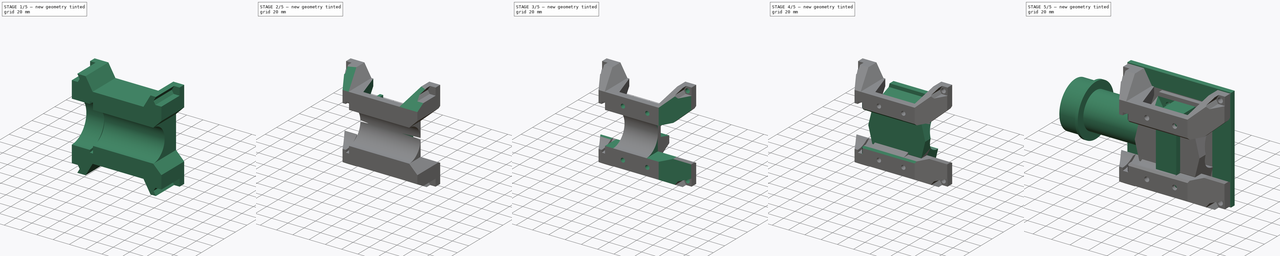
[diagram: build sequence overview — one tinted view per stage of 5, left to right]
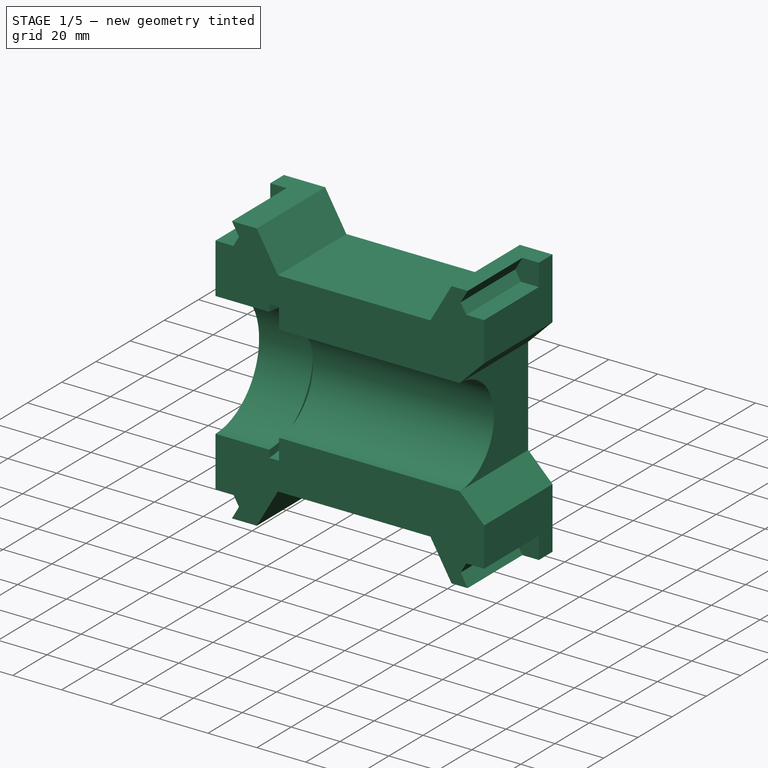
[diagram: stage 1 of 5 — iso view after this stage's code; geometry added in this stage tinted green]
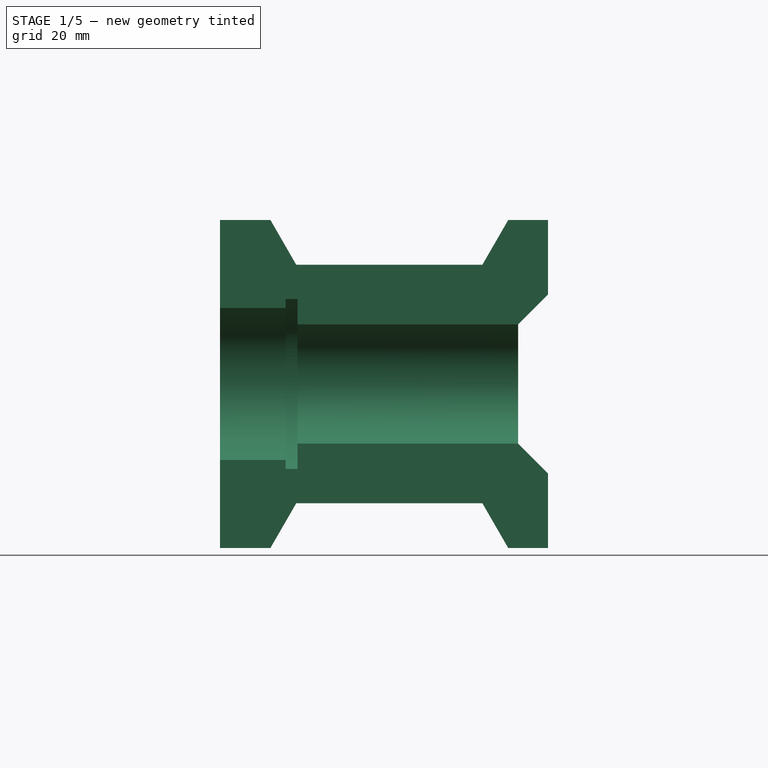
[diagram: stage 1 of 5 — front view after this stage's code; geometry added in this stage tinted green]
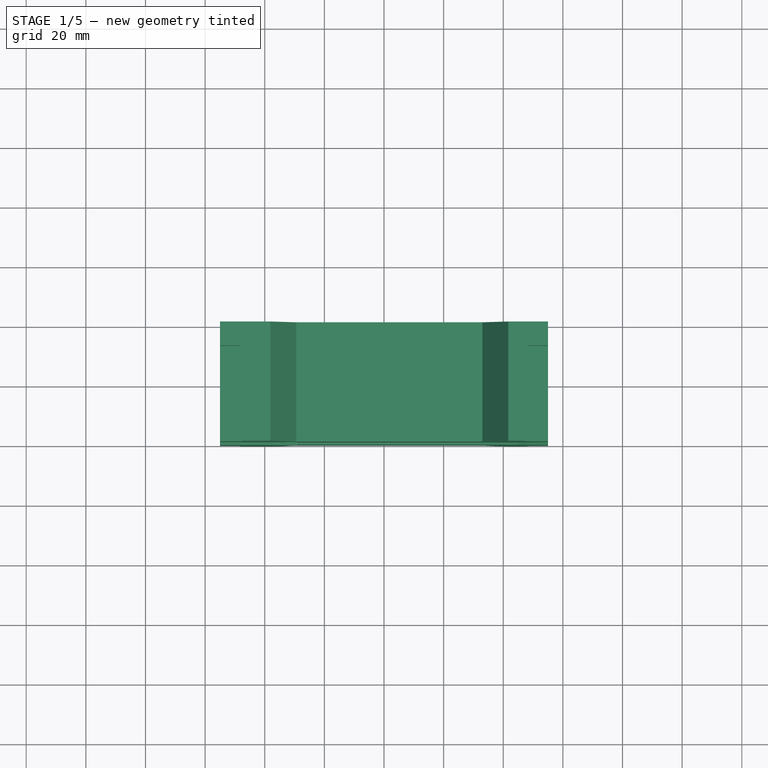
[diagram: stage 1 of 5 — top view after this stage's code; geometry added in this stage tinted green]
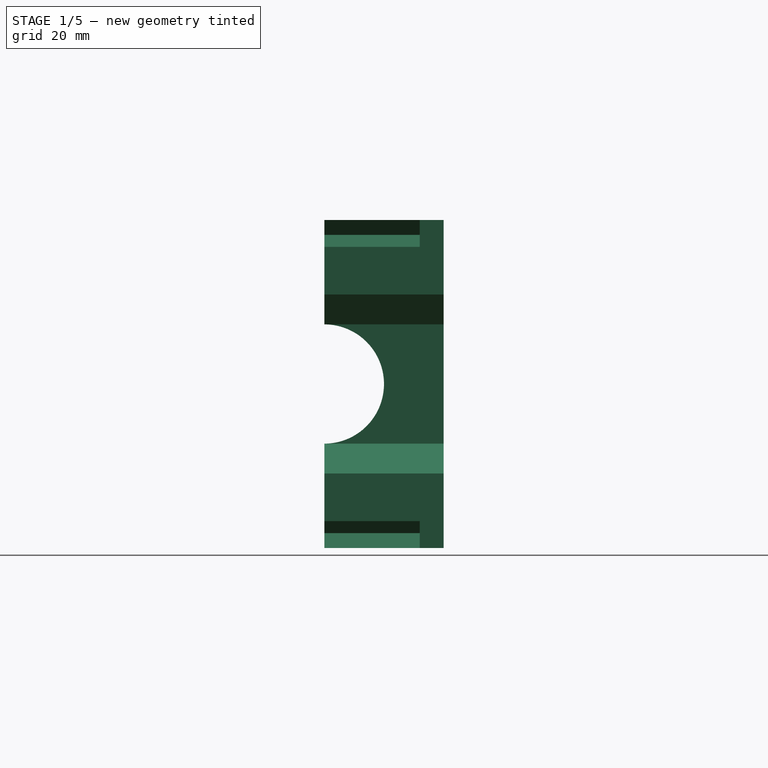
[diagram: stage 1 of 5 — right view after this stage's code; geometry added in this stage tinted green]
FCSTD DOCUMENT  (FreeCAD 0.19R24291 (Git))
Label: Microscope Stand
License: All rights reserved
LicenseURL: http://en.wikipedia.org/wiki/All_rights_reserved
objects: Sketcher::SketchObject×32, PartDesign::Pocket×24, PartDesign::Mirrored×12, PartDesign::Pad×6, PartDesign::Body×4, PartDesign::Chamfer×4, App::Part×3, PartDesign::PolarPattern×2, PartDesign::Plane×2, PartDesign::MultiTransform×2, Part::Feature×2, PartDesign::Revolution×1
note: 126 computed .brp shape members not serialized (recipe doc carries the construction recipe); baked Part::Feature solids carry a one-line shape summary decoded from their .brp

FEATURE [PartDesign::Body] Body001  label="VESA Mount"
  Group = -> [Sketch002,Pad001,Sketch003,Pocket,PolarPattern]
  Origin = -> Origin002
  Tip = -> PolarPattern
FEATURE [Sketcher::SketchObject] Sketch004
  FullyConstrained = true
  MapMode = 5
  Placement = pos=(0,0,0) rot=(1,0,0;1.5708rad)
  Support = -> [XZ_Plane003]
  sketch-geometry (4):
    g0: LineSegment StartX=-55 StartY=55 StartZ=0 EndX=55 EndY=55 EndZ=0
    g1: LineSegment StartX=55 StartY=55 StartZ=0 EndX=55 EndY=-55 EndZ=0
    g2: LineSegment StartX=55 StartY=-55 StartZ=0 EndX=-55 EndY=-55 EndZ=0
    g3: LineSegment StartX=-55 StartY=-55 StartZ=0 EndX=-55 EndY=55 EndZ=0
  constraints (10):
    c: Coincident(g0,g1)
    c: Coincident(g1,g2)
    c: Coincident(g2,g3)
    c: Coincident(g3,g0)
    c: Horizontal(g2)
    c: Vertical(g3)
    c: Symmetric(g0,g0,g-2)
    c: Equal(g0,g1)
    c: Symmetric(g0,g1,g-1)
    c: DistanceX(g0,g0) = 110
FEATURE [PartDesign::Pad] Pad002
  Direction = (1,1,1)
  Length = 40
  Length2 = 100
  Placement = pos=(0,0,0) rot=(1,0,0;1.5708rad)
  Profile = -> Sketch004
  Type = 0
FEATURE [Sketcher::SketchObject] Sketch006
  FullyConstrained = false
  MapMode = 5
  Placement = pos=(0,-40,1.77e-14) rot=(1,0,0;1.5708rad)
  Support = -> [Pad002]
  sketch-geometry (5):
    g0: LineSegment StartX=45 StartY=20 StartZ=0 EndX=62.6598 EndY=37.6598 EndZ=0
    g1: LineSegment StartX=62.6598 StartY=37.6598 StartZ=0 EndX=74.0258 EndY=37.6598 EndZ=0
    g2: LineSegment StartX=74.0258 StartY=37.6598 StartZ=0 EndX=74.0258 EndY=0 EndZ=0
    g3: LineSegment StartX=74.0258 StartY=0 StartZ=0 EndX=45 EndY=0 EndZ=0
    g4: LineSegment StartX=45 StartY=0 StartZ=0 EndX=45 EndY=20 EndZ=0
  constraints (13):
    c: Coincident(g0,g1)
    c: Horizontal(g1)
    c: Coincident(g1,g2)
    c: PointOnObject(g2,g-1)
    c: Vertical(g2)
    c: Coincident(g2,g3)
    c: PointOnObject(g3,g-1)
    c: Coincident(g3,g4)
    c: Vertical(g4)
    c: Coincident(g4,g0)
    c: Angle(g0,g1) = 2.35619
    c: DistanceX(g-1,g3) = 45
    c: DistanceY(g4,g4) = 20
FEATURE [PartDesign::Pocket] Pocket001
  BaseFeature = -> Pad002
  Length = 5
  Length2 = 100
  Placement = pos=(0,0,0) rot=(1,0,0;1.5708rad)
  Profile = -> Sketch006
  Type = 1
FEATURE [PartDesign::Mirrored] Mirrored
  BaseFeature = -> Pocket001
  MirrorPlane = -> Sketch006 [H_Axis]
  Originals = -> [Pocket001]
  Placement = pos=(0,0,0) rot=(1,0,0;1.5708rad)
FEATURE [Sketcher::SketchObject] Sketch007
  FullyConstrained = true
  MapMode = 5
  Placement = pos=(-55,0,0) rot=(0.707107,0,-0.707107;3.14159rad)
  Support = -> [Mirrored]
  sketch-geometry (1):
    g0: Circle CenterX=0 CenterY=40 CenterZ=0 NormalX=0 NormalY=0 NormalZ=1 AngleXU=0 Radius=20
  constraints (3):
    c: PointOnObject(g0,g-2)
    c: Diameter(g0) = 40
    c: DistanceY(g-1,g0) = 40
FEATURE [PartDesign::Pocket] Pocket002
  BaseFeature = -> Mirrored
  Length = 5
  Length2 = 100
  Placement = pos=(0,0,0) rot=(1,0,0;1.5708rad)
  Profile = -> Sketch007
  Type = 1
FEATURE [Sketcher::SketchObject] Sketch008
  FullyConstrained = true
  MapMode = 5
  Placement = pos=(-55,0,0) rot=(0.707107,0,-0.707107;3.14159rad)
  Support = -> [Pocket002]
  sketch-geometry (1):
    g0: Circle CenterX=0 CenterY=40 CenterZ=0 NormalX=0 NormalY=0 NormalZ=1 AngleXU=0 Radius=28.5
  constraints (3):
    c: PointOnObject(g0,g-2)
    c: DistanceY(g-1,g0) = 40
    c: Diameter(g0) = 57
FEATURE [PartDesign::Pocket] Pocket003
  BaseFeature = -> Pocket002
  Length = 26
  Length2 = 100
  Placement = pos=(0,0,0) rot=(1,0,0;1.5708rad)
  Profile = -> Sketch008
  Type = 0
FEATURE [PartDesign::Plane] DatumPlane
  Length = 126.912
  MapMode = 5
  Placement = pos=(-55,0,0) rot=(0.707107,0,-0.707107;3.14159rad)
  ResizeMode = 0
  Support = -> [Pocket003]
  Width = 81.9115
FEATURE [Sketcher::SketchObject] Sketch009
  FullyConstrained = false
  MapMode = 5
  Placement = pos=(-55,0,0) rot=(0.707107,0,-0.707107;3.14159rad)
  Support = -> [DatumPlane]
  sketch-geometry (8):
    g0: ArcOfCircle CenterX=0 CenterY=40 CenterZ=0 NormalX=0 NormalY=0 NormalZ=1 AngleXU=0 Radius=25.5 StartAngle=3.14159 EndAngle=6.28319
    g1: LineSegment StartX=-25.5 StartY=40 StartZ=0 EndX=0 EndY=40 EndZ=0
    g2: LineSegment StartX=0 StartY=40 StartZ=0 EndX=25.5 EndY=40 EndZ=0
    g3: LineSegment StartX=-25.5 StartY=40 StartZ=0 EndX=-34.4039 EndY=40 EndZ=0
    g4: LineSegment StartX=25.5 StartY=40 StartZ=0 EndX=36.1026 EndY=40 EndZ=0
    g5: LineSegment StartX=36.1026 StartY=40 StartZ=0 EndX=36.1026 EndY=0 EndZ=0
    g6: LineSegment StartX=36.1026 StartY=0 StartZ=0 EndX=-34.4039 EndY=0 EndZ=0
    g7: LineSegment StartX=-34.4039 StartY=40 StartZ=0 EndX=-34.4039 EndY=0 EndZ=0
  constraints (21):
    c: PointOnObject(g0,g-2)
    c: Coincident(g1,g0)
    c: Coincident(g1,g0)
    c: Coincident(g2,g0)
    c: Coincident(g2,g0)
    c: Horizontal(g2)
    c: Horizontal(g1)
    c: DistanceY(g-1,g0) = 40
    c: DistanceX(g0,g0) = 51
    c: Coincident(g3,g0)
    c: Horizontal(g3)
    c: Coincident(g4,g0)
    c: Horizontal(g4)
    c: Coincident(g5,g4)
    c: PointOnObject(g5,g-1)
    c: Vertical(g5)
    c: Coincident(g6,g5)
    c: Horizontal(g6)
    c: Coincident(g7,g3)
    c: Coincident(g7,g6)
    c: Vertical(g7)
FEATURE [PartDesign::Pad] Pad003
  BaseFeature = -> Pocket003
  Direction = (1,1,1)
  Length = 22
  Length2 = 100
  Placement = pos=(0,0,0) rot=(1,0,0;1.5708rad)
  Profile = -> Sketch009
  Reversed = true
  Type = 0
FEATURE [Sketcher::SketchObject] Sketch015
  FullyConstrained = false
  MapMode = 5
  Placement = pos=(0,-40,1.77e-14) rot=(1,0,0;1.5708rad)
  Support = -> [Pad003]
  sketch-geometry (4):
    g0: LineSegment StartX=-43.3127 StartY=64.0413 StartZ=0 EndX=-29.4325 EndY=40 EndZ=0
    g1: LineSegment StartX=-29.4325 StartY=40 StartZ=0 EndX=33 EndY=40 EndZ=0
    g2: LineSegment StartX=33 StartY=40 StartZ=0 EndX=46.8802 EndY=64.0413 EndZ=0
    g3: LineSegment StartX=46.8802 StartY=64.0413 StartZ=0 EndX=-43.3127 EndY=64.0413 EndZ=0
  constraints (10):
    c: Coincident(g0,g1)
    c: Horizontal(g1)
    c: Coincident(g1,g2)
    c: Coincident(g2,g3)
    c: Coincident(g3,g0)
    c: Horizontal(g3)
    c: Angle(g2,g1) = 2.0944
    c: Angle(g1,g0) = 2.0944
    c: DistanceY(g-1,g1) = 40
    c: DistanceX(g-2,g1) = 33
FEATURE [PartDesign::Pocket] Pocket008
  BaseFeature = -> Pad003
  Length = 5
  Length2 = 100
  Placement = pos=(0,0,0) rot=(1,0,0;1.5708rad)
  Profile = -> Sketch015
  Type = 1
FEATURE [PartDesign::Mirrored] Mirrored004
  BaseFeature = -> Pocket008
  MirrorPlane = -> Sketch015 [H_Axis]
  Originals = -> [Pocket008]
  Placement = pos=(0,0,0) rot=(1,0,0;1.5708rad)
FEATURE [Sketcher::SketchObject] Sketch016
  FullyConstrained = false
  MapMode = 5
  Placement = pos=(0,-40,1.77e-14) rot=(1,0,0;1.5708rad)
  Support = -> [Mirrored004]
  sketch-geometry (12):
    g0: LineSegment StartX=-45.375 StartY=50 StartZ=0 EndX=-47.6875 EndY=54.0054 EndZ=0
    g1: LineSegment StartX=-47.6875 StartY=54.0054 StartZ=0 EndX=-52.3125 EndY=54.0054 EndZ=0
    g2: LineSegment StartX=-52.3125 StartY=54.0054 StartZ=0 EndX=-54.625 EndY=50 EndZ=0
    g3: LineSegment StartX=-54.625 StartY=50 StartZ=0 EndX=-52.3125 EndY=45.9946 EndZ=0
    g4: LineSegment StartX=-52.3125 StartY=45.9946 StartZ=0 EndX=-47.6875 EndY=45.9946 EndZ=0
    g5: LineSegment StartX=-47.6875 StartY=45.9946 StartZ=0 EndX=-45.375 EndY=50 EndZ=0
    g6: Circle CenterX=-50 CenterY=50 CenterZ=0 NormalX=0 NormalY=0 NormalZ=1 AngleXU=0 Radius=4.625
    g7: LineSegment StartX=-54.625 StartY=50 StartZ=0 EndX=-45.375 EndY=50 EndZ=0
    g8: LineSegment StartX=-52.3125 StartY=45.9946 StartZ=0 EndX=-57.1976 EndY=45.9946 EndZ=0
    g9: LineSegment StartX=-57.1976 StartY=45.9946 StartZ=0 EndX=-57.1976 EndY=57.5063 EndZ=0
    g10: LineSegment StartX=-47.6875 StartY=54.0054 StartZ=0 EndX=-49.7087 EndY=57.5063 EndZ=0
    g11: LineSegment StartX=-57.1976 StartY=57.5063 StartZ=0 EndX=-49.7087 EndY=57.5063 EndZ=0
  constraints (28):
    c: Coincident(g0,g1)
    c: Coincident(g1,g2)
    c: Coincident(g2,g3)
    c: Coincident(g3,g4)
    c: Coincident(g4,g5)
    c: Coincident(g5,g0)
    c: Equal(g0, g1-g5) x5
    c: PointOnObject(g0,g6)
    c: PointOnObject(g1,g6)
    c: PointOnObject(g2,g6)
    c: PointOnObject(g3,g6)
    c: PointOnObject(g4,g6)
    c: PointOnObject(g5,g6)
    c: Coincident(g7,g2)
    c: Coincident(g7,g0)
    c: Horizontal(g7)
    c: DistanceX(g6,g-1) = 50
    c: DistanceY(g-1,g6) = 50
    c: DistanceX(g2,g0) = 9.25
    c: Coincident(g8,g4)
    c: Horizontal(g8)
    c: Coincident(g9,g8)
    c: Vertical(g9)
    c: Coincident(g10,g0)
    c: Coincident(g11,g10)
    c: Horizontal(g11)
    c: Coincident(g11,g9)
    c: Parallel(g10,g0)
FEATURE [PartDesign::Pocket] Pocket009
  BaseFeature = -> Mirrored004
  Length = 32
  Length2 = 100
  Placement = pos=(0,0,0) rot=(1,0,0;1.5708rad)
  Profile = -> Sketch016
  Type = 0
FEATURE [PartDesign::Mirrored] Mirrored005
  MirrorPlane = -> Sketch016 [V_Axis]
  Placement = pos=(0,0,0) rot=(1,0,0;1.5708rad)
FEATURE [PartDesign::Mirrored] Mirrored006
  MirrorPlane = -> Sketch016 [H_Axis]
  Placement = pos=(0,0,0) rot=(1,0,0;1.5708rad)
FEATURE [PartDesign::MultiTransform] MultiTransform
  BaseFeature = -> Pocket009
  Originals = -> [Pocket009]
  Placement = pos=(0,0,0) rot=(1,0,0;1.5708rad)
  Transformations = -> [Mirrored005,Mirrored006]
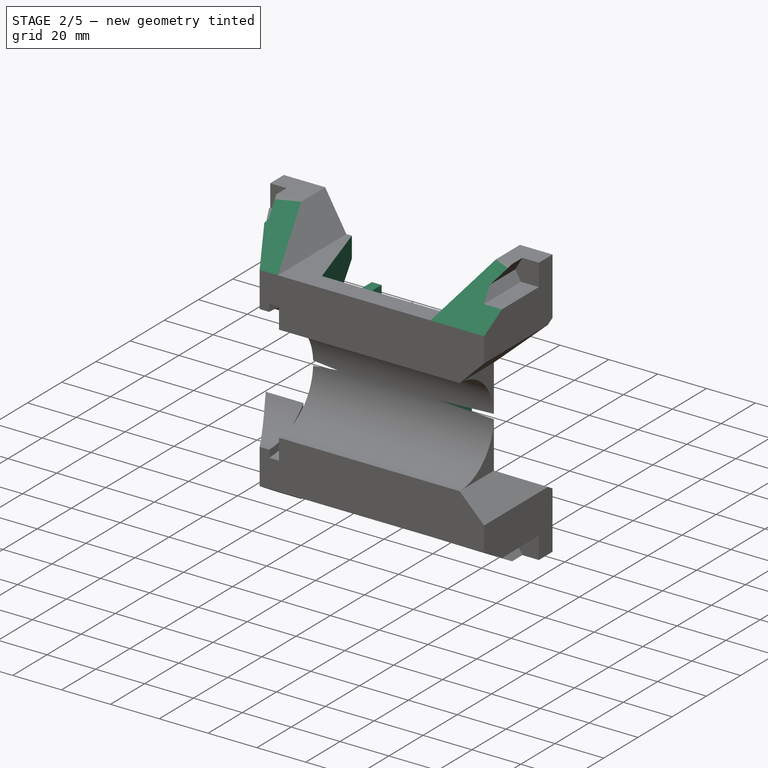
[diagram: stage 2 of 5 — iso view after this stage's code; geometry added in this stage tinted green]
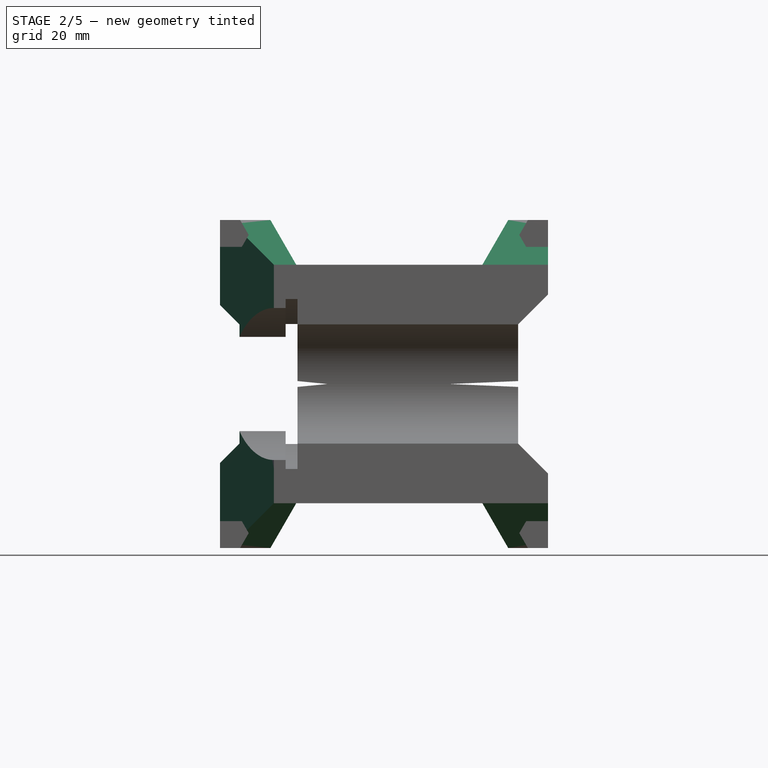
[diagram: stage 2 of 5 — front view after this stage's code; geometry added in this stage tinted green]
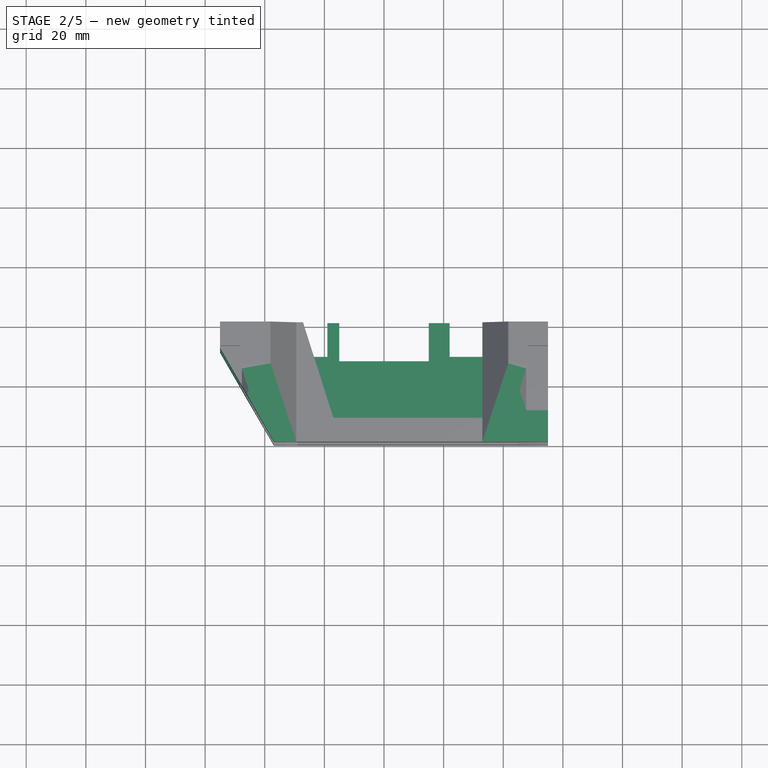
[diagram: stage 2 of 5 — top view after this stage's code; geometry added in this stage tinted green]
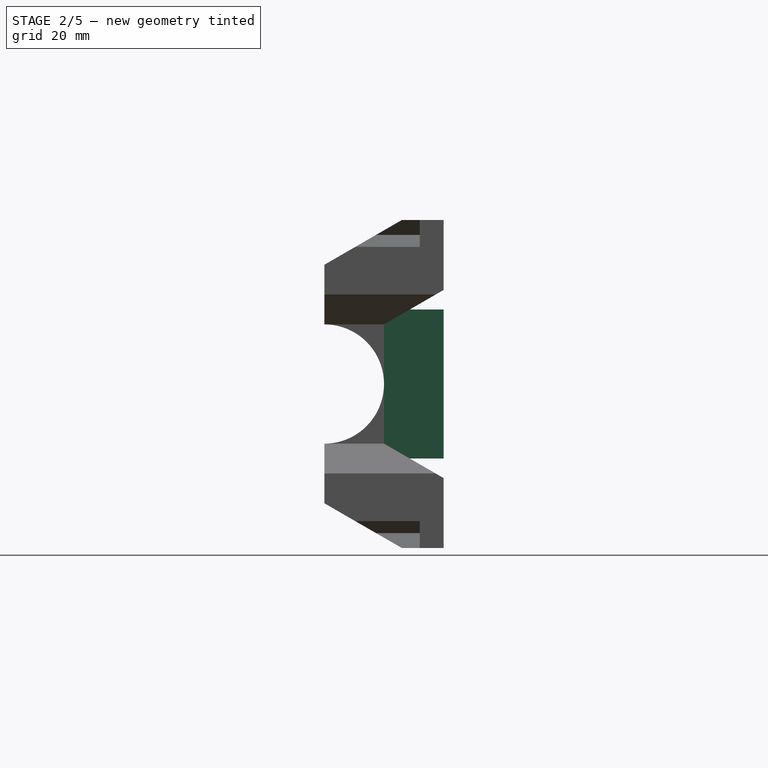
[diagram: stage 2 of 5 — right view after this stage's code; geometry added in this stage tinted green]
FEATURE [Sketcher::SketchObject] Sketch017
  FullyConstrained = true
  MapMode = 5
  Placement = pos=(-55,0,0) rot=(0.707107,0,-0.707107;3.14159rad)
  Support = -> [MultiTransform]
  sketch-geometry (4):
    g0: LineSegment StartX=-31.547 StartY=0 StartZ=0 EndX=-20 EndY=20 EndZ=0
    g1: LineSegment StartX=-20 StartY=20 StartZ=0 EndX=20 EndY=20 EndZ=0
    g2: LineSegment StartX=20 StartY=20 StartZ=0 EndX=31.547 EndY=0 EndZ=0
    g3: LineSegment StartX=31.547 StartY=0 StartZ=0 EndX=-31.547 EndY=0 EndZ=0
  constraints (11):
    c: Coincident(g0,g1)
    c: Horizontal(g1)
    c: Coincident(g1,g2)
    c: PointOnObject(g2,g-1)
    c: Coincident(g2,g3)
    c: Coincident(g0,g3)
    c: Symmetric(g2,g0,g-2)
    c: Equal(g0,g2)
    c: Angle(g0,g1) = 2.0944
    c: DistanceX(g1,g1) = 40
    c: DistanceY(g0,g0) = 20
FEATURE [PartDesign::Pocket] Pocket010
  BaseFeature = -> MultiTransform
  Length = 36
  Length2 = 100
  Placement = pos=(0,0,0) rot=(1,0,0;1.5708rad)
  Profile = -> Sketch017
  Type = 0
FEATURE [Sketcher::SketchObject] Sketch018
  FullyConstrained = true
  MapMode = 5
  Placement = pos=(55,0,0) rot=(0.707107,0,0.707107;3.14159rad)
  Support = -> [Pocket010]
  sketch-geometry (4):
    g0: LineSegment StartX=-31.547 StartY=0 StartZ=0 EndX=-20 EndY=20 EndZ=0
    g1: LineSegment StartX=-20 StartY=20 StartZ=0 EndX=20 EndY=20 EndZ=0
    g2: LineSegment StartX=20 StartY=20 StartZ=0 EndX=31.547 EndY=0 EndZ=0
    g3: LineSegment StartX=31.547 StartY=0 StartZ=0 EndX=-31.547 EndY=0 EndZ=0
  constraints (11):
    c: PointOnObject(g0,g-1)
    c: Coincident(g0,g1)
    c: Horizontal(g1)
    c: Coincident(g1,g2)
    c: Coincident(g2,g3)
    c: Coincident(g3,g0)
    c: Symmetric(g0,g2,g-2)
    c: Equal(g0,g2)
    c: DistanceX(g1,g1) = 40
    c: Angle(g1,g2) = 2.0944
    c: DistanceY(g2,g1) = 20
FEATURE [PartDesign::Pocket] Pocket011
  BaseFeature = -> Pocket010
  Length = 33
  Length2 = 100
  Placement = pos=(0,0,0) rot=(1,0,0;1.5708rad)
  Profile = -> Sketch018
  Type = 0
FEATURE [PartDesign::Plane] DatumPlane001
  AttachmentOffset = pos=(0,0,-55) rot=(0,0,1;0rad)
  Length = 126.912
  MapMode = 5
  Placement = pos=(0,0,1.22e-14) rot=(0.707107,0,-0.707107;3.14159rad)
  ResizeMode = 0
  Support = -> [Pocket011]
  Width = 81.9115
FEATURE [Sketcher::SketchObject] Sketch019
  FullyConstrained = false
  MapMode = 5
  Placement = pos=(0,0,1.22e-14) rot=(0.707107,0,-0.707107;3.14159rad)
  Support = -> [DatumPlane001]
  sketch-geometry (4):
    g0: LineSegment StartX=-72.4204 StartY=0 StartZ=0 EndX=-72.4204 EndY=8.66404 EndZ=0
    g1: LineSegment StartX=-72.4204 StartY=8.66404 StartZ=0 EndX=0 EndY=15 EndZ=0
    g2: LineSegment StartX=0 StartY=15 StartZ=0 EndX=0 EndY=0 EndZ=0
    g3: LineSegment StartX=0 StartY=0 StartZ=0 EndX=-72.4204 EndY=0 EndZ=0
  constraints (10):
    c: PointOnObject(g0,g-1)
    c: Coincident(g0,g1)
    c: PointOnObject(g1,g-2)
    c: Coincident(g1,g2)
    c: Coincident(g2,g-1)
    c: Coincident(g3,g2)
    c: Coincident(g3,g0)
    c: Vertical(g0)
    c: Angle(g0,g1) = 1.65806
    c: DistanceY(g2,g2) = 15
FEATURE [PartDesign::Pocket] Pocket012
  BaseFeature = -> Pocket011
  Length = 30
  Length2 = 100
  Midplane = true
  Placement = pos=(0,0,0) rot=(1,0,0;1.5708rad)
  Profile = -> Sketch019
  Type = 0
FEATURE [PartDesign::Mirrored] Mirrored007
  BaseFeature = -> Pocket012
  MirrorPlane = -> Sketch019 [V_Axis]
  Originals = -> [Pocket012]
  Placement = pos=(0,0,0) rot=(1,0,0;1.5708rad)
FEATURE [Sketcher::SketchObject] Sketch020
  ExternalGeometry = -> [Mirrored007]
  FullyConstrained = false
  MapMode = 5
  Placement = pos=(0,-4.21e-14,-40) rot=(1,0,0;3.14159rad)
  Support = -> [Mirrored007]
  sketch-geometry (6):
    g0: GeomPoint X=-7 Y=40 Z=0
    g1: GeomPoint X=23 Y=40 Z=0
    g2: LineSegment StartX=-17 StartY=32 StartZ=0 EndX=33 EndY=32 EndZ=0
    g3: LineSegment StartX=-17 StartY=32 StartZ=0 EndX=-27.1612 EndY=0 EndZ=0
    g4: LineSegment StartX=-27.1612 StartY=0 StartZ=0 EndX=33 EndY=0 EndZ=0
    g5: LineSegment StartX=33 StartY=32 StartZ=0 EndX=33 EndY=0 EndZ=0
  constraints (15):
    c: PointOnObject(g0,g-3)
    c: PointOnObject(g1,g-3)
    c: DistanceX(g-1,g1) = 23
    c: DistanceX(g0,g-1) = 7
    c: Horizontal(g2)
    c: DistanceX(g2,g2) = 50
    c: Vertical(g2,g-3)
    c: DistanceY(g2,g-3) = 8
    c: Coincident(g3,g2)
    c: PointOnObject(g3,g-1)
    c: Coincident(g4,g3)
    c: PointOnObject(g4,g-1)
    c: Coincident(g5,g2)
    c: Vertical(g5)
    c: Coincident(g5,g4)
FEATURE [PartDesign::Pocket] Pocket013
  BaseFeature = -> Mirrored007
  Length = 15
  Length2 = 100
  Placement = pos=(0,0,0) rot=(1,0,0;1.5708rad)
  Profile = -> Sketch020
  Type = 0
FEATURE [PartDesign::Mirrored] Mirrored008
  MirrorPlane = -> XY_Plane003
  Placement = pos=(0,0,0) rot=(1,0,0;1.5708rad)
FEATURE [PartDesign::MultiTransform] MultiTransform001
  BaseFeature = -> Pocket013
  Originals = -> [Pocket013]
  Placement = pos=(0,0,0) rot=(1,0,0;1.5708rad)
  Transformations = -> [Mirrored008]
FEATURE [Sketcher::SketchObject] Sketch021
  FullyConstrained = false
  MapMode = 5
  Placement = pos=(-55,0,0) rot=(0.707107,0,-0.707107;3.14159rad)
  Support = -> [MultiTransform001]
  sketch-geometry (3):
    g0: LineSegment StartX=-59.1537 StartY=6.82486 StartZ=0 EndX=-40 EndY=40 EndZ=0
    g1: LineSegment StartX=-40 StartY=40 StartZ=0 EndX=-59.1537 EndY=40 EndZ=0
    g2: LineSegment StartX=-59.1537 StartY=40 StartZ=0 EndX=-59.1537 EndY=6.82486 EndZ=0
  constraints (8):
    c: Coincident(g0,g1)
    c: Horizontal(g1)
    c: Coincident(g1,g2)
    c: Vertical(g2)
    c: Coincident(g0,g2)
    c: Angle(g0,g2) = 0.523599
    c: DistanceX(g0,g-1) = 40
    c: DistanceY(g-1,g0) = 40
FEATURE [PartDesign::Pocket] Pocket014
  BaseFeature = -> MultiTransform001
  Length = 5
  Length2 = 100
  Placement = pos=(0,0,0) rot=(1,0,0;1.5708rad)
  Profile = -> Sketch021
  Type = 1
FEATURE [PartDesign::Mirrored] Mirrored009
  BaseFeature = -> Pocket014
  MirrorPlane = -> Sketch021 [V_Axis]
  Originals = -> [Pocket014]
  Placement = pos=(0,0,0) rot=(1,0,0;1.5708rad)
FEATURE [Sketcher::SketchObject] Sketch022
  FullyConstrained = false
  MapMode = 5
  Support = -> [XY_Plane003]
  sketch-geometry (3):
    g0: LineSegment StartX=-60.0196 StartY=0 StartZ=0 EndX=-32.6136 EndY=-47.4684 EndZ=0
    g1: LineSegment StartX=-32.6136 StartY=-47.4684 StartZ=0 EndX=-60.0196 EndY=-47.4684 EndZ=0
    g2: LineSegment StartX=-60.0196 StartY=-47.4684 StartZ=0 EndX=-60.0196 EndY=0 EndZ=0
  constraints (7):
    c: PointOnObject(g0,g-1)
    c: Coincident(g0,g1)
    c: Horizontal(g1)
    c: Coincident(g1,g2)
    c: Coincident(g2,g0)
    c: Vertical(g2)
    c: Angle(g2,g0) = 0.523599
FEATURE [PartDesign::Pocket] Pocket015
  BaseFeature = -> Mirrored009
  Length = 5
  Length2 = 100
  Midplane = true
  Placement = pos=(0,0,0) rot=(1,0,0;1.5708rad)
  Profile = -> Sketch022
  Type = 1
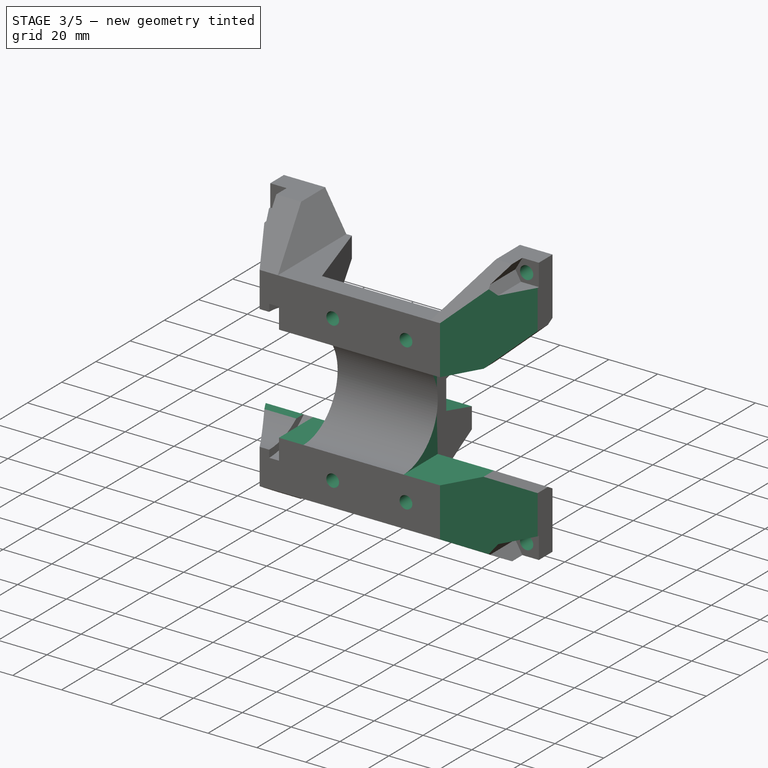
[diagram: stage 3 of 5 — iso view after this stage's code; geometry added in this stage tinted green]
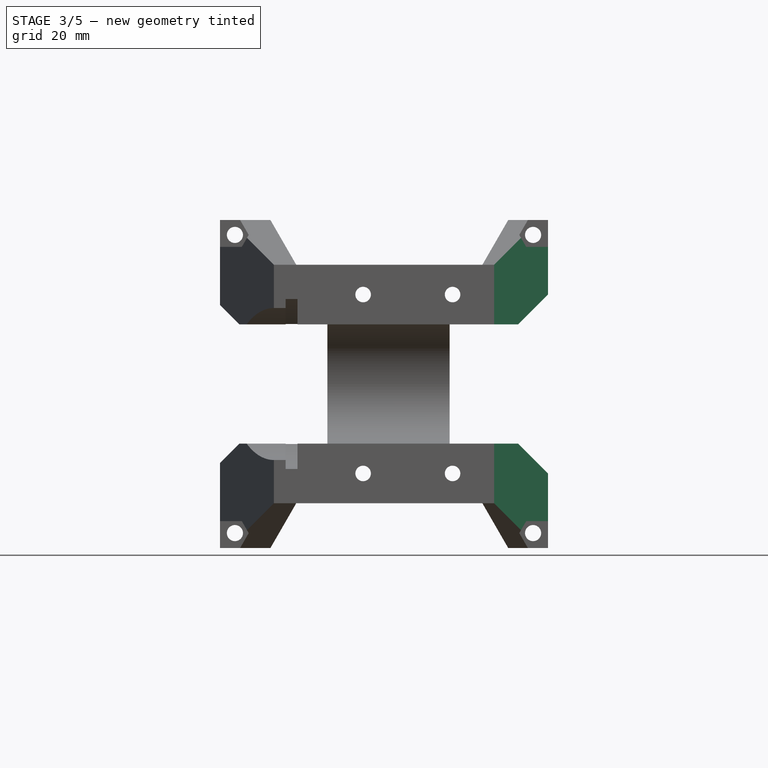
[diagram: stage 3 of 5 — front view after this stage's code; geometry added in this stage tinted green]
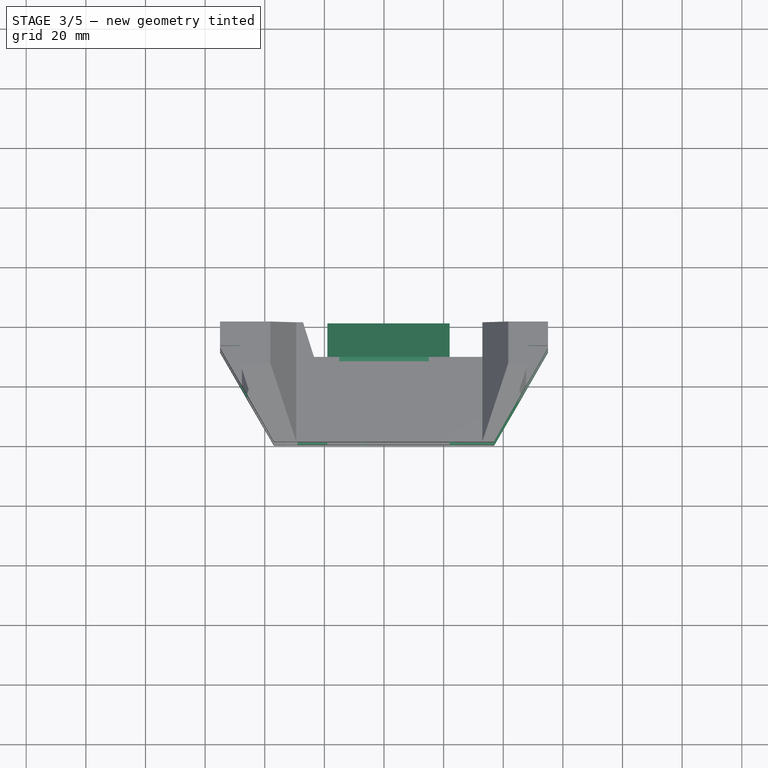
[diagram: stage 3 of 5 — top view after this stage's code; geometry added in this stage tinted green]
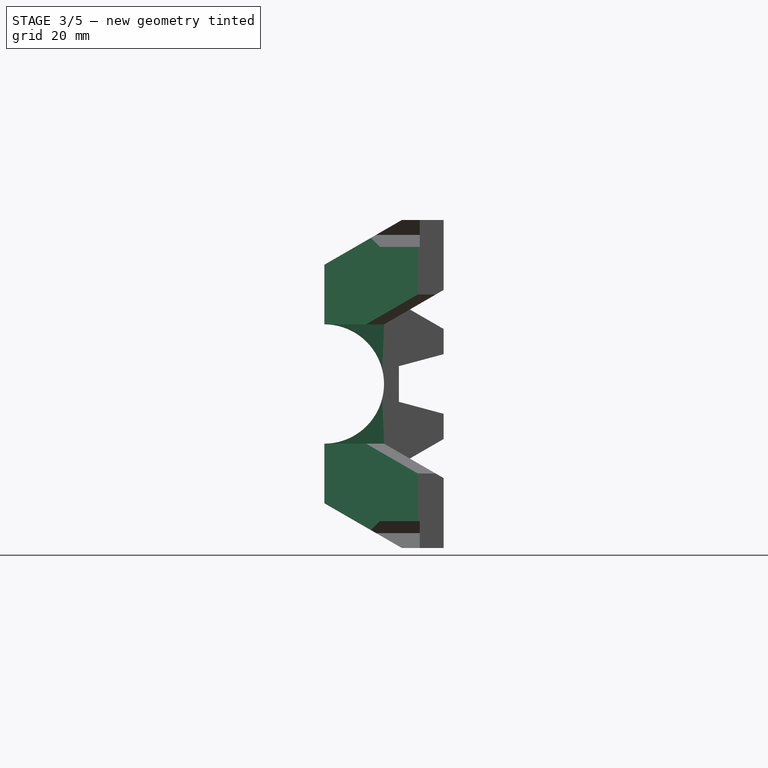
[diagram: stage 3 of 5 — right view after this stage's code; geometry added in this stage tinted green]
FEATURE [PartDesign::Mirrored] Mirrored010
  BaseFeature = -> Pocket015
  MirrorPlane = -> Sketch022 [V_Axis]
  Originals = -> [Pocket015]
  Placement = pos=(0,0,0) rot=(1,0,0;1.5708rad)
FEATURE [Sketcher::SketchObject] Sketch023
  FullyConstrained = true
  MapMode = 5
  Placement = pos=(0,-40,1.77e-14) rot=(1,0,0;1.5708rad)
  Support = -> [Mirrored010]
  sketch-geometry (2):
    g0: Circle CenterX=-7 CenterY=30 CenterZ=0 NormalX=0 NormalY=0 NormalZ=1 AngleXU=0 Radius=2.6
    g1: Circle CenterX=23 CenterY=30 CenterZ=0 NormalX=0 NormalY=0 NormalZ=1 AngleXU=0 Radius=2.6
  constraints (6):
    c: Horizontal(g1,g0)
    c: Equal(g0,g1)
    c: Diameter(g1) = 5.2
    c: DistanceX(g0,g-1) = 7
    c: DistanceX(g-1,g1) = 23
    c: DistanceY(g-1,g0) = 30
FEATURE [PartDesign::Pocket] Pocket016
  BaseFeature = -> Mirrored010
  Length = 5
  Length2 = 100
  Placement = pos=(0,0,0) rot=(1,0,0;1.5708rad)
  Profile = -> Sketch023
  Type = 1
FEATURE [PartDesign::Mirrored] Mirrored011
  BaseFeature = -> Pocket016
  MirrorPlane = -> Sketch023 [H_Axis]
  Originals = -> [Pocket016]
  Placement = pos=(0,0,0) rot=(1,0,0;1.5708rad)
FEATURE [PartDesign::Body] Body003  label="Top"
  Group = -> [Sketch010,Pad004,Sketch011,Pocket004,Sketch012,Pocket005,Mirrored001,Sketch013,Pocket006,Mirrored002,Sketch014,Pocket007,Mirrored003,Sketch024,Pocket017]
  Origin = -> Origin004
  Placement = pos=(0,-40,0) rot=(0,0,1;0rad)
  Tip = -> Pocket017
FEATURE [Sketcher::SketchObject] Sketch025
  ExternalGeometry = -> [Mirrored011]
  FullyConstrained = true
  MapMode = 5
  Placement = pos=(0,-20,6.6e-15) rot=(-1,0,0;1.5708rad)
  Support = -> [Mirrored011]
  sketch-geometry (4):
    g0: LineSegment StartX=22 StartY=20 StartZ=0 EndX=45 EndY=20 EndZ=0
    g1: LineSegment StartX=45 StartY=20 StartZ=0 EndX=45 EndY=-20 EndZ=0
    g2: LineSegment StartX=45 StartY=-20 StartZ=0 EndX=22 EndY=-20 EndZ=0
    g3: LineSegment StartX=22 StartY=-20 StartZ=0 EndX=22 EndY=20 EndZ=0
  constraints (10):
    c: Coincident(g0,g1)
    c: Coincident(g1,g2)
    c: Coincident(g2,g3)
    c: Coincident(g3,g0)
    c: Horizontal(g0)
    c: Horizontal(g2)
    c: Vertical(g1)
    c: Vertical(g3)
    c: Coincident(g0,g-3)
    c: Coincident(g1,g-4)
FEATURE [PartDesign::Pocket] Pocket018
  BaseFeature = -> Mirrored011
  Length = 5
  Length2 = 100
  Placement = pos=(0,0,0) rot=(1,0,0;1.5708rad)
  Profile = -> Sketch025
  Type = 1
FEATURE [Sketcher::SketchObject] Sketch026
  ExternalGeometry = -> [Pocket018]
  FullyConstrained = true
  MapMode = 5
  Placement = pos=(0,-20,6.6e-15) rot=(-1,0,0;1.5708rad)
  Support = -> [Pocket018]
  sketch-geometry (4):
    g0: LineSegment StartX=-29 StartY=20 StartZ=0 EndX=-19 EndY=20 EndZ=0
    g1: LineSegment StartX=-19 StartY=20 StartZ=0 EndX=-19 EndY=-20 EndZ=0
    g2: LineSegment StartX=-19 StartY=-20 StartZ=0 EndX=-29 EndY=-20 EndZ=0
    g3: LineSegment StartX=-29 StartY=-20 StartZ=0 EndX=-29 EndY=20 EndZ=0
  constraints (10):
    c: Coincident(g0,g1)
    c: Coincident(g1,g2)
    c: Coincident(g2,g3)
    c: Coincident(g3,g0)
    c: Horizontal(g0)
    c: Horizontal(g2)
    c: Vertical(g1)
    c: Vertical(g3)
    c: Coincident(g0,g-3)
    c: Coincident(g1,g-4)
FEATURE [PartDesign::Pocket] Pocket019
  BaseFeature = -> Pocket018
  Length = 23
  Length2 = 100
  Placement = pos=(0,0,0) rot=(1,0,0;1.5708rad)
  Profile = -> Sketch026
  Type = 1
FEATURE [Sketcher::SketchObject] Sketch027
  FullyConstrained = true
  MapMode = 5
  Placement = pos=(3e-16,-8,7e-15) rot=(1,0,0;1.5708rad)
  Support = -> [Pocket019]
  sketch-geometry (1):
    g0: Circle CenterX=50 CenterY=50 CenterZ=0 NormalX=0 NormalY=0 NormalZ=1 AngleXU=0 Radius=2.7
  constraints (3):
    c: DistanceX(g-1,g0) = 50
    c: DistanceY(g-1,g0) = 50
    c: Diameter(g0) = 5.4
FEATURE [PartDesign::Pocket] Pocket020
  BaseFeature = -> Pocket019
  Length = 5
  Length2 = 100
  Placement = pos=(0,0,0) rot=(1,0,0;1.5708rad)
  Profile = -> Sketch027
  Type = 1
FEATURE [PartDesign::PolarPattern] PolarPattern001
  Angle = 360
  Axis = -> Sketch027 [N_Axis]
  BaseFeature = -> Pocket020
  Occurrences = 4
  Originals = -> [Pocket020]
  Placement = pos=(0,0,0) rot=(1,0,0;1.5708rad)
FEATURE [Part::Feature] Part__Feature  label="CMD --Through Desk"
  shape: bbox 309.7 x 540.2 x 113.3 mm, 254 faces, 7 solids (baked)
FEATURE [App::Part] Part001  label="MonitorArm"
  Group = -> [Part__Feature]
  Origin = -> Origin005
  Placement = pos=(-209,-353,841) rot=(-1,0,0;4.71239rad)
FEATURE [Part::Feature] Part__Feature001  label="User Library-desk_1500x800"
  shape: bbox 1500 x 750 x 800 mm, 26 faces, 3 solids (baked)
FEATURE [App::Part] Part002  label="Desk"
  Group = -> [Part__Feature001]
  Origin = -> Origin006
  Placement = pos=(0,2.04e-14,92) rot=(1,0,0;1.5708rad)
FEATURE [Sketcher::SketchObject] Sketch028
  ExternalGeometry = -> [PolarPattern001]
  FullyConstrained = true
  MapMode = 5
  Placement = pos=(15,0,3.3e-15) rot=(0.707107,0,-0.707107;3.14159rad)
  Support = -> [PolarPattern001]
  sketch-geometry (5):
    g0: LineSegment StartX=-25 StartY=12.8128 StartZ=0 EndX=-25 EndY=0 EndZ=0
    g1: LineSegment StartX=-25 StartY=0 StartZ=0 EndX=25 EndY=0 EndZ=0
    g2: LineSegment StartX=25 StartY=0 StartZ=0 EndX=25 EndY=12.8128 EndZ=0
    g3: LineSegment StartX=25 StartY=12.8128 StartZ=0 EndX=-1.42e-14 EndY=15 EndZ=0
    g4: LineSegment StartX=-1.42e-14 StartY=15 StartZ=0 EndX=-25 EndY=12.8128 EndZ=0
  constraints (12):
    c: Coincident(g-3,g0)
    c: PointOnObject(g0,g-1)
    c: Vertical(g0)
    c: Coincident(g0,g1)
    c: PointOnObject(g1,g-1)
    c: Coincident(g1,g2)
    c: Coincident(g2,g-4)
    c: Vertical(g2)
    c: Coincident(g2,g3)
    c: Coincident(g3,g-4)
    c: Coincident(g3,g4)
    c: Coincident(g4,g0)
FEATURE [PartDesign::Pad] Pad005
  BaseFeature = -> PolarPattern001
  Direction = (1,1,1)
  Length = 30
  Length2 = 100
  Placement = pos=(0,0,0) rot=(1,0,0;1.5708rad)
  Profile = -> Sketch028
  Type = 0
FEATURE [Sketcher::SketchObject] Sketch029
  ExternalGeometry = -> [Pad005]
  FullyConstrained = true
  MapMode = 5
  Placement = pos=(0,-20,8.9e-15) rot=(-1,0,0;1.5708rad)
  Support = -> [Pad005]
  sketch-geometry (4):
    g0: LineSegment StartX=-48.4726 StartY=20 StartZ=0 EndX=-33 EndY=20 EndZ=0
    g1: LineSegment StartX=-33 StartY=20 StartZ=0 EndX=-33 EndY=-20 EndZ=0
    g2: LineSegment StartX=-33 StartY=-20 StartZ=0 EndX=-48.4726 EndY=-20 EndZ=0
    g3: LineSegment StartX=-48.4726 StartY=-20 StartZ=0 EndX=-48.4726 EndY=20 EndZ=0
  constraints (10):
    c: Coincident(g0,g1)
    c: Coincident(g1,g2)
    c: Coincident(g2,g3)
    c: Coincident(g3,g0)
    c: Horizontal(g0)
    c: Horizontal(g2)
    c: Vertical(g1)
    c: Vertical(g3)
    c: Coincident(g0,g-3)
    c: Coincident(g1,g-4)
FEATURE [PartDesign::Pocket] Pocket021
  BaseFeature = -> Pad005
  Length = 5
  Length2 = 100
  Midplane = true
  Placement = pos=(0,0,0) rot=(1,0,0;1.5708rad)
  Profile = -> Sketch029
  Type = 1
FEATURE [Sketcher::SketchObject] Sketch030
  ExternalGeometry = -> [Pocket021]
  FullyConstrained = true
  MapMode = 5
  Placement = pos=(-19,0,-4.8e-15) rot=(0.707107,0,-0.707107;3.14159rad)
  Support = -> [Pocket021]
  sketch-geometry (14):
    g0: LineSegment StartX=-25 StartY=11.3397 StartZ=0 EndX=-25 EndY=0 EndZ=0
    g1: LineSegment StartX=-25 StartY=0 StartZ=0 EndX=25 EndY=0 EndZ=0
    g2: LineSegment StartX=25 StartY=0 StartZ=0 EndX=25 EndY=11.3397 EndZ=0
    g3: LineSegment StartX=25 StartY=11.3397 StartZ=0 EndX=20 EndY=20 EndZ=0
    g4: LineSegment StartX=20 StartY=20 StartZ=0 EndX=-20 EndY=20 EndZ=0
    g5: LineSegment StartX=-20 StartY=20 StartZ=0 EndX=-25 EndY=11.3397 EndZ=0
    g6: LineSegment StartX=-25 StartY=11.3397 StartZ=0 EndX=-20 EndY=0 EndZ=0
    g7: LineSegment StartX=-20 StartY=0 StartZ=0 EndX=20 EndY=0 EndZ=0
    g8: LineSegment StartX=20 StartY=0 StartZ=0 EndX=25 EndY=11.3397 EndZ=0
    g9: LineSegment StartX=-20 StartY=20 StartZ=0 EndX=-20 EndY=0 EndZ=0
    g10: LineSegment StartX=20 StartY=20 StartZ=0 EndX=20 EndY=0 EndZ=0
    g11: LineSegment StartX=-25 StartY=11.3397 StartZ=0 EndX=-25 EndY=0 EndZ=0
    g12: LineSegment StartX=-25 StartY=0 StartZ=0 EndX=-20 EndY=0 EndZ=0
    g13: LineSegment StartX=-20 StartY=0 StartZ=0 EndX=-25 EndY=11.3397 EndZ=0
  constraints (32):
    c: Coincident(g-3,g0)
    c: PointOnObject(g0,g-1)
    c: Vertical(g0)
    c: Coincident(g0,g1)
    c: PointOnObject(g1,g-1)
    c: Coincident(g1,g2)
    c: Coincident(g2,g-4)
    c: Vertical(g2)
    c: Coincident(g2,g3)
    c: Coincident(g3,g-4)
    c: Coincident(g3,g4)
    c: Coincident(g4,g-3)
    c: Coincident(g4,g5)
    c: Coincident(g5,g0)
    c: Coincident(g0,g6)
    c: PointOnObject(g6,g1)
    c: Coincident(g6,g7)
    c: PointOnObject(g7,g1)
    c: Coincident(g7,g8)
    c: Coincident(g8,g2)
    c: Coincident(g9,g4)
    c: Vertical(g9)
    c: Coincident(g10,g3)
    c: Vertical(g10)
    c: Coincident(g10,g7)
    c: Coincident(g9,g6)
    c: Coincident(g0,g11)
    c: Coincident(g11,g0)
    c: Coincident(g11,g12)
    c: Coincident(g12,g6)
    c: Coincident(g12,g13)
    c: Coincident(g13,g11)
FEATURE [Sketcher::SketchObject] Sketch031
  ExternalGeometry = -> [Pocket021]
  FullyConstrained = true
  MapMode = 5
  Placement = pos=(-19,0,-4.8e-15) rot=(0.707107,0,-0.707107;3.14159rad)
  Support = -> [Pocket021]
  sketch-geometry (14):
    g0: LineSegment StartX=-10 StartY=0 StartZ=0 EndX=-5.98076 EndY=15 EndZ=0
    g1: LineSegment StartX=-5.98076 StartY=15 StartZ=0 EndX=5.98076 EndY=15 EndZ=0
    g2: LineSegment StartX=5.98076 StartY=15 StartZ=0 EndX=10 EndY=0 EndZ=0
    g3: LineSegment StartX=18.453 StartY=0 StartZ=0 EndX=25 EndY=11.3397 EndZ=0
    g4: LineSegment StartX=25 StartY=11.3397 StartZ=0 EndX=25 EndY=3.73e-14 EndZ=0
    g5: LineSegment StartX=-25 StartY=2.82e-14 StartZ=0 EndX=-25 EndY=11.3397 EndZ=0
    g6: LineSegment StartX=-25 StartY=11.3397 StartZ=0 EndX=-18.453 EndY=0 EndZ=0
    g7: LineSegment StartX=-18.453 StartY=0 StartZ=0 EndX=-25 EndY=2.82e-14 EndZ=0
    g8: LineSegment StartX=10 StartY=0 StartZ=0 EndX=-10 EndY=0 EndZ=0
    g9: LineSegment StartX=18.453 StartY=0 StartZ=0 EndX=25 EndY=3.73e-14 EndZ=0
    g10: LineSegment StartX=-18.453 StartY=0 StartZ=0 EndX=-10 EndY=0 EndZ=0
    g11: LineSegment StartX=-10 StartY=0 StartZ=0 EndX=0 EndY=0 EndZ=0
    g12: LineSegment StartX=0 StartY=0 StartZ=0 EndX=10 EndY=0 EndZ=0
    g13: LineSegment StartX=10 StartY=0 StartZ=0 EndX=18.453 EndY=0 EndZ=0
  constraints (33):
    c: PointOnObject(g0,g-1)
    c: Coincident(g0,g1)
    c: Horizontal(g1)
    c: Coincident(g1,g2)
    c: Coincident(g3,g-7)
    c: Coincident(g3,g4)
    c: Coincident(g4,g-7)
    c: Coincident(g5,g6)
    c: Coincident(g6,g7)
    c: Coincident(g2,g8)
    c: Coincident(g8,g0)
    c: Coincident(g9,g4)
    c: Equal(g0,g2)
    c: Symmetric(g0,g2,g-2)
    c: Coincident(g3,g9)
    c: Coincident(g5,g-4)
    c: Coincident(g10,g6)
    c: Coincident(g10,g0)
    c: Coincident(g11,g0)
    c: Coincident(g11,g-1)
    c: Coincident(g12,g-1)
    c: Coincident(g12,g2)
    c: Coincident(g13,g2)
    c: Coincident(g13,g3)
    c: DistanceX(g0,g2) = 20
    c: DistanceY(g2,g1) = 15
    c: Angle(g8,g0) = 1.309
    c: PointOnObject(g3,g-1)
    c: Coincident(g7,g5)
    c: Coincident(g5,g-4)
    c: PointOnObject(g6,g-1)
    c: Equal(g7,g9)
    c: Angle(g6,g7) = 1.0472
FEATURE [PartDesign::Pocket] Pocket022
  BaseFeature = -> Pocket021
  Length = 5
  Length2 = 100
  Placement = pos=(0,0,0) rot=(1,0,0;1.5708rad)
  Profile = -> Sketch031
  Type = 1
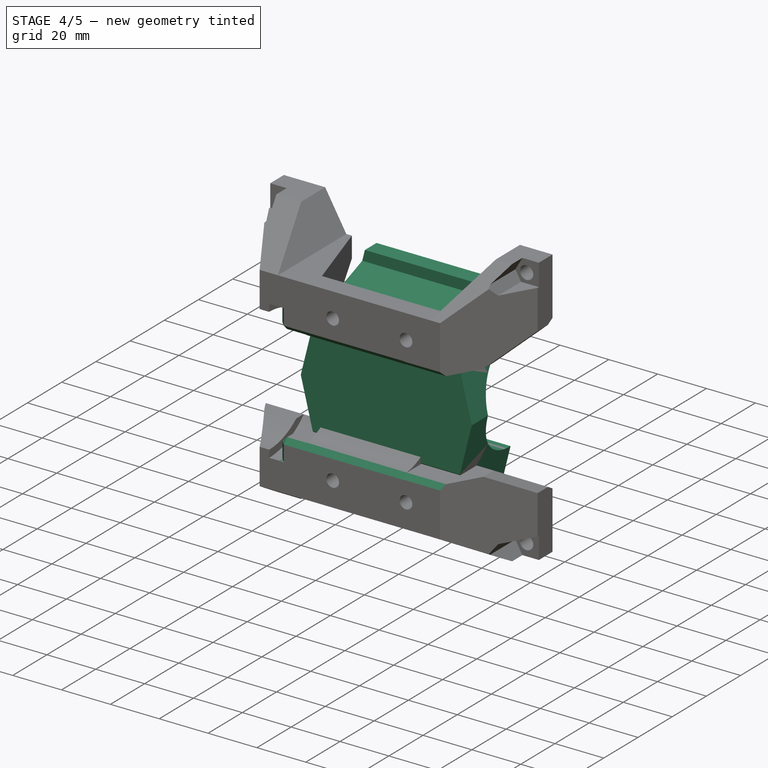
[diagram: stage 4 of 5 — iso view after this stage's code; geometry added in this stage tinted green]
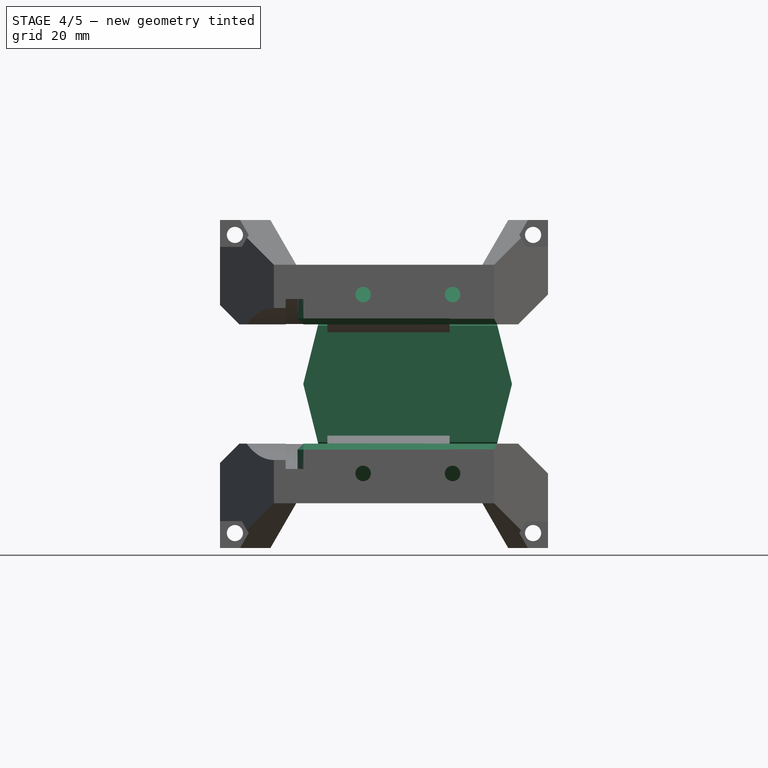
[diagram: stage 4 of 5 — front view after this stage's code; geometry added in this stage tinted green]
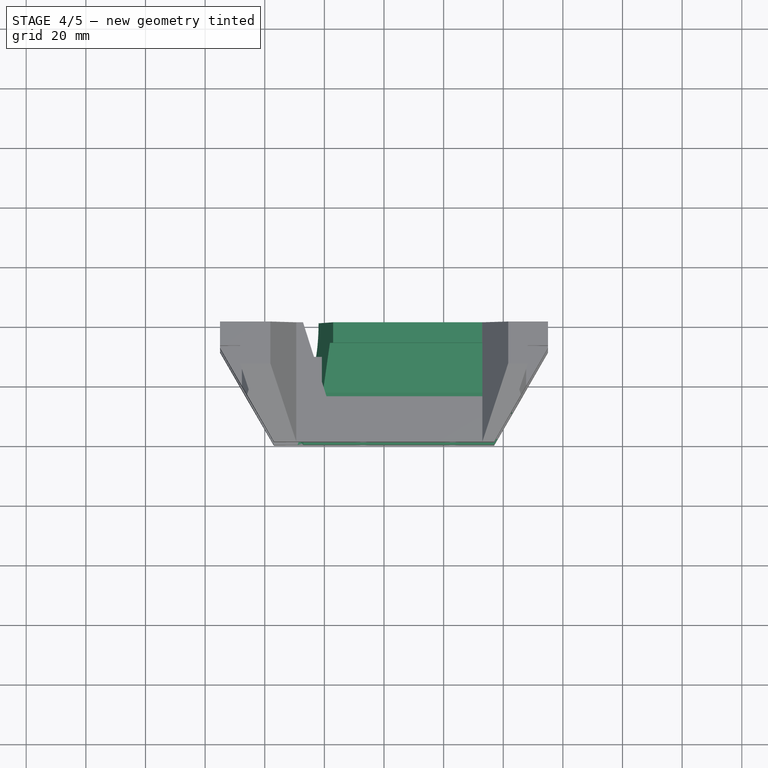
[diagram: stage 4 of 5 — top view after this stage's code; geometry added in this stage tinted green]
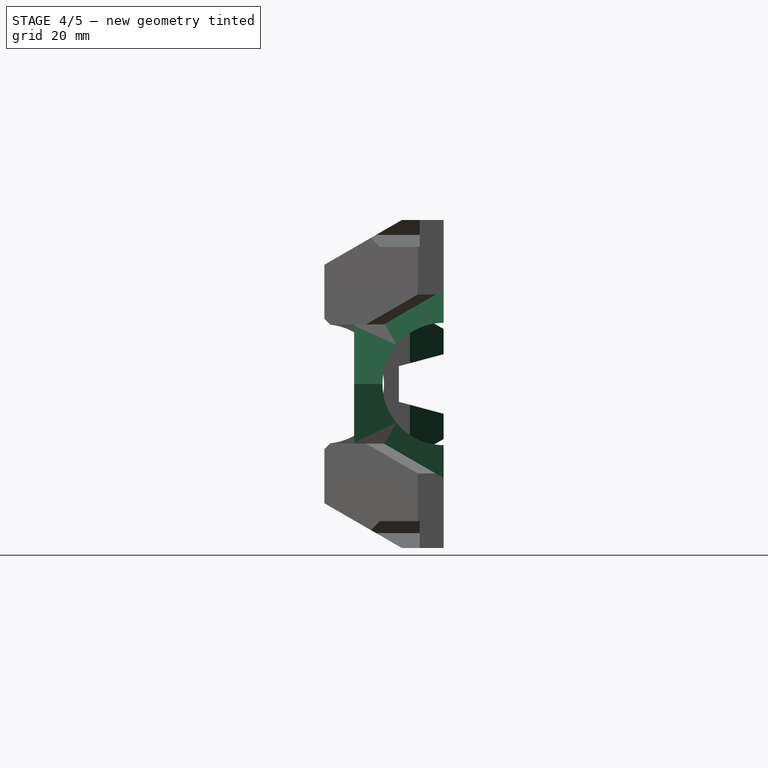
[diagram: stage 4 of 5 — right view after this stage's code; geometry added in this stage tinted green]
FEATURE [Sketcher::SketchObject] Sketch010
  FullyConstrained = false
  MapMode = 5
  Placement = pos=(0,0,0) rot=(1,0,0;1.5708rad)
  Support = -> [XZ_Plane004]
  sketch-geometry (10):
    g0: LineSegment StartX=-27.0695 StartY=0 StartZ=0 EndX=-17.0695 EndY=40 EndZ=0
    g1: LineSegment StartX=-17.0695 StartY=40 StartZ=0 EndX=32.9305 EndY=40 EndZ=0
    g2: LineSegment StartX=32.9305 StartY=40 StartZ=0 EndX=42.9305 EndY=0 EndZ=0
    g3: LineSegment StartX=42.9305 StartY=0 StartZ=0 EndX=32.9305 EndY=-40 EndZ=0
    g4: LineSegment StartX=32.9305 StartY=-40 StartZ=0 EndX=-17.0695 EndY=-40 EndZ=0
    g5: LineSegment StartX=-17.0695 StartY=-40 StartZ=0 EndX=-27.0695 EndY=0 EndZ=0
    g6: LineSegment StartX=-17.0695 StartY=40 StartZ=0 EndX=-17.0695 EndY=0 EndZ=0
    g7: LineSegment StartX=-27.0695 StartY=0 StartZ=0 EndX=-17.0695 EndY=0 EndZ=0
    g8: LineSegment StartX=32.9305 StartY=40 StartZ=0 EndX=32.9305 EndY=0 EndZ=0
    g9: LineSegment StartX=42.9305 StartY=0 StartZ=0 EndX=32.9305 EndY=0 EndZ=0
  constraints (28):
    c: PointOnObject(g0,g-1)
    c: Coincident(g0,g1)
    c: Horizontal(g1)
    c: Coincident(g1,g2)
    c: PointOnObject(g2,g-1)
    c: Coincident(g2,g3)
    c: Coincident(g3,g4)
    c: Horizontal(g4)
    c: Coincident(g4,g5)
    c: Coincident(g5,g0)
    c: Equal(g5,g0)
    c: Equal(g2,g3)
    c: Equal(g4,g1)
    c: Coincident(g0,g6)
    c: PointOnObject(g6,g-1)
    c: Vertical(g6)
    c: PointOnObject(g7,g5)
    c: Coincident(g7,g6)
    c: Horizontal(g7)
    c: DistanceX(g7,g7) = 10
    c: DistanceY(g6,g6) = 40
    c: Coincident(g8,g1)
    c: PointOnObject(g8,g-1)
    c: Vertical(g8)
    c: Coincident(g9,g2)
    c: Coincident(g9,g8)
    c: Equal(g9,g7)
    c: DistanceX(g1,g1) = 50
FEATURE [PartDesign::Pad] Pad004
  Direction = (1,1,1)
  Length = 30
  Length2 = 100
  Placement = pos=(0,0,0) rot=(1,0,0;1.5708rad)
  Profile = -> Sketch010
  Type = 0
FEATURE [Sketcher::SketchObject] Sketch011
  FullyConstrained = true
  MapMode = 5
  Placement = pos=(0,0,0) rot=(0.57735,0.57735,0.57735;2.0944rad)
  Support = -> [YZ_Plane004]
  sketch-geometry (1):
    g0: Circle CenterX=0 CenterY=0 CenterZ=0 NormalX=0 NormalY=0 NormalZ=1 AngleXU=0 Radius=20.5
  constraints (2):
    c: Coincident(g0,g-1)
    c: Diameter(g0) = 41
FEATURE [PartDesign::Pocket] Pocket004
  BaseFeature = -> Pad004
  Length = 5
  Length2 = 100
  Midplane = true
  Placement = pos=(0,0,0) rot=(1,0,0;1.5708rad)
  Profile = -> Sketch011
  Reversed = true
  Type = 1
FEATURE [Sketcher::SketchObject] Sketch012
  FullyConstrained = false
  MapMode = 5
  Placement = pos=(0,0,0) rot=(0.57735,0.57735,0.57735;2.0944rad)
  Support = -> [YZ_Plane004]
  sketch-geometry (5):
    g0: LineSegment StartX=-36.1399 StartY=42.4477 StartZ=0 EndX=-6.8155 EndY=42.4477 EndZ=0
    g1: LineSegment StartX=-6.8155 StartY=42.4477 StartZ=0 EndX=-6.8155 EndY=35.7342 EndZ=0
    g2: LineSegment StartX=-6.8155 StartY=35.7342 StartZ=0 EndX=-23.3454 EndY=26.1907 EndZ=0
    g3: LineSegment StartX=-23.3454 StartY=26.1907 StartZ=0 EndX=-36.1399 EndY=13.3961 EndZ=0
    g4: LineSegment StartX=-36.1399 StartY=42.4477 StartZ=0 EndX=-36.1399 EndY=13.3961 EndZ=0
  constraints (10):
    c: Horizontal(g0)
    c: Coincident(g0,g1)
    c: Vertical(g1)
    c: Coincident(g1,g2)
    c: Coincident(g2,g3)
    c: Coincident(g4,g0)
    c: Coincident(g4,g3)
    c: Vertical(g4)
    c: Angle(g3,g4) = 0.785398
    c: Angle(g1,g2) = 2.0944
FEATURE [PartDesign::Pocket] Pocket005
  BaseFeature = -> Pocket004
  Length = 5
  Length2 = 100
  Midplane = true
  Placement = pos=(0,0,0) rot=(1,0,0;1.5708rad)
  Profile = -> Sketch012
  Reversed = true
  Type = 1
FEATURE [PartDesign::Mirrored] Mirrored001
  BaseFeature = -> Pocket005
  MirrorPlane = -> Sketch012 [H_Axis]
  Originals = -> [Pocket005]
  Placement = pos=(0,0,0) rot=(1,0,0;1.5708rad)
FEATURE [Sketcher::SketchObject] Sketch032
  ExternalGeometry = -> [Pocket022]
  FullyConstrained = true
  MapMode = 5
  Placement = pos=(0,-1.39e-14,25) rot=(0,0,1;3.14159rad)
  Support = -> [Pocket022]
  sketch-geometry (14):
    g0: LineSegment StartX=-22 StartY=11.3397 StartZ=0 EndX=19 EndY=11.3397 EndZ=0
    g1: GeomPoint X=-1.5 Y=11.3397 Z=0
    g2: LineSegment StartX=-22 StartY=-1.95e-14 StartZ=0 EndX=-22 EndY=11.3397 EndZ=0
    g3: LineSegment StartX=-22 StartY=11.3397 StartZ=0 EndX=-15.453 EndY=0 EndZ=0
    g4: LineSegment StartX=-15.453 StartY=0 StartZ=0 EndX=-22 EndY=-1.95e-14 EndZ=0
    g5: LineSegment StartX=19 StartY=11.3397 StartZ=0 EndX=12.453 EndY=0 EndZ=0
    g6: LineSegment StartX=12.453 StartY=0 StartZ=0 EndX=19 EndY=-1.6e-14 EndZ=0
    g7: LineSegment StartX=19 StartY=-1.6e-14 StartZ=0 EndX=19 EndY=11.3397 EndZ=0
    g8: LineSegment StartX=-11.453 StartY=0 StartZ=0 EndX=-1.5 EndY=0 EndZ=0
    g9: LineSegment StartX=-1.5 StartY=0 StartZ=0 EndX=8.45299 EndY=0 EndZ=0
    g10: LineSegment StartX=8.45299 StartY=0 StartZ=0 EndX=6 EndY=8 EndZ=0
    g11: LineSegment StartX=6 StartY=8 StartZ=0 EndX=-9 EndY=8 EndZ=0
    g12: LineSegment StartX=-9 StartY=8 StartZ=0 EndX=-11.453 EndY=0 EndZ=0
    g13: LineSegment StartX=-1.5 StartY=11.3397 StartZ=0 EndX=-1.5 EndY=0 EndZ=0
  constraints (34):
    c: Coincident(g-3,g0)
    c: Coincident(g0,g-4)
    c: Symmetric(g0,g0,g1)
    c: Coincident(g-3,g2)
    c: Coincident(g2,g0)
    c: Coincident(g2,g3)
    c: PointOnObject(g3,g-1)
    c: Coincident(g3,g4)
    c: Coincident(g4,g2)
    c: Coincident(g0,g5)
    c: PointOnObject(g5,g-1)
    c: Coincident(g5,g6)
    c: Coincident(g6,g-4)
    c: Coincident(g6,g7)
    c: Coincident(g7,g5)
    c: PointOnObject(g8,g-1)
    c: PointOnObject(g9,g-1)
    c: Coincident(g9,g10)
    c: Coincident(g10,g11)
    c: Coincident(g11,g12)
    c: Coincident(g12,g8)
    c: Equal(g3,g5)
    c: Angle(g6,g5) = 1.0472
    c: DistanceX(g11,g10) = 15
    c: Vertical(g1,g8)
    c: Vertical(g8,g9)
    c: PointOnObject(g8,g-1)
    c: PointOnObject(g9,g-1)
    c: Coincident(g13,g1)
    c: Coincident(g13,g8)
    c: Symmetric(g11,g10,g13)
    c: Equal(g10,g12)
    c: DistanceY(g8,g11) = 8
    c: DistanceX(g9,g5) = 4
FEATURE [PartDesign::Pocket] Pocket023
  BaseFeature = -> Pocket022
  Length = 5
  Length2 = 100
  Placement = pos=(0,0,0) rot=(1,0,0;1.5708rad)
  Profile = -> Sketch032
  Type = 1
FEATURE [PartDesign::Chamfer] Chamfer
  Angle = 45
  Base = -> Pocket023 [Edge57,Edge55,Edge96,Edge203,Edge227,Edge201]
  BaseFeature = -> Pocket023
  ChamferType = 0
  FlipDirection = false
  Placement = pos=(0,0,0) rot=(1,0,0;1.5708rad)
  Size = 2
  Size2 = 1
  SupportTransform = false
FEATURE [PartDesign::Chamfer] Chamfer001
  Angle = 45
  Base = -> Chamfer [Edge74,Edge168]
  BaseFeature = -> Chamfer
  ChamferType = 0
  FlipDirection = false
  Placement = pos=(0,0,0) rot=(1,0,0;1.5708rad)
  Size = 2
  Size2 = 1
  SupportTransform = false
FEATURE [PartDesign::Chamfer] Chamfer002
  Angle = 45
  Base = -> Chamfer001 [Edge14]
  BaseFeature = -> Chamfer001
  ChamferType = 0
  FlipDirection = false
  Placement = pos=(0,0,0) rot=(1,0,0;1.5708rad)
  Size = 1.9
  Size2 = 1
  SupportTransform = false
FEATURE [PartDesign::Chamfer] Chamfer003
  Angle = 45
  Base = -> Chamfer002 [Edge225]
  BaseFeature = -> Chamfer002
  ChamferType = 0
  FlipDirection = false
  Placement = pos=(0,0,0) rot=(1,0,0;1.5708rad)
  Size = 1.9
  Size2 = 1
  SupportTransform = false
FEATURE [PartDesign::Body] Body002  label="Bottom"
  Group = -> [Sketch004,Pad002,Sketch006,Pocket001,Mirrored,Sketch007,Pocket002,Sketch008,Pocket003,DatumPlane,Sketch009,Pad003,Sketch015,Pocket008,Mirrored004,Sketch016,Pocket009,MultiTransform,Mirrored005,Mirrored006,Sketch017,Pocket010,Sketch018,Pocket011,DatumPlane001,Sketch019,Pocket012,Mirrored007,Sketch020,Pocket013,MultiTransform001,Mirrored008,Sketch021,Pocket014,Mirrored009,Sketch022,Pocket015,+24 more]
  Origin = -> Origin003
  Tip = -> Chamfer003
FEATURE [App::Part] Part
  Group = -> [Body,Body001,Body002,Body003]
  Origin = -> Origin
  Placement = pos=(-270,-422,1320) rot=(0,1,0;4.71239rad)
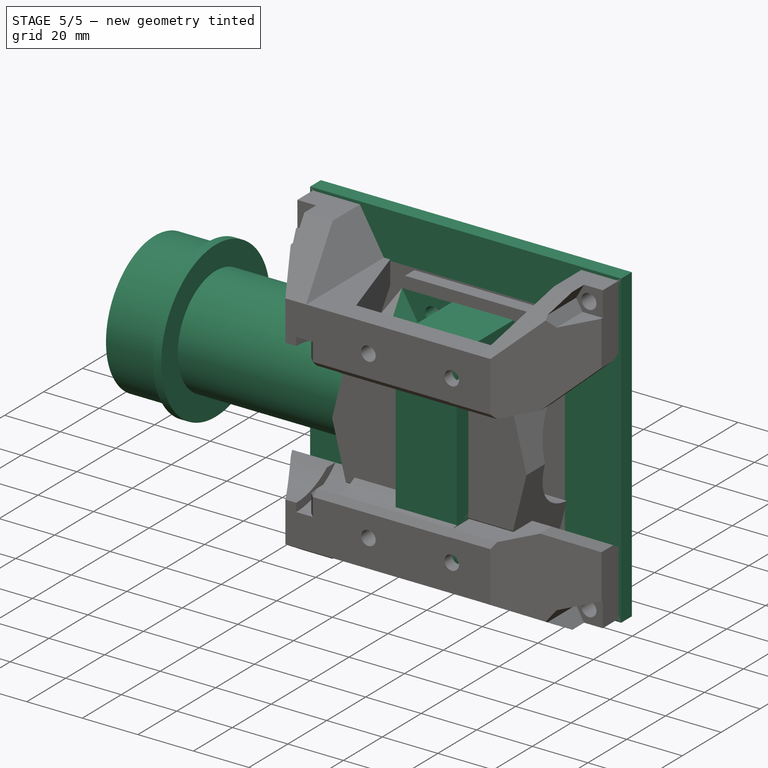
[diagram: stage 5 of 5 — iso view after this stage's code; geometry added in this stage tinted green]
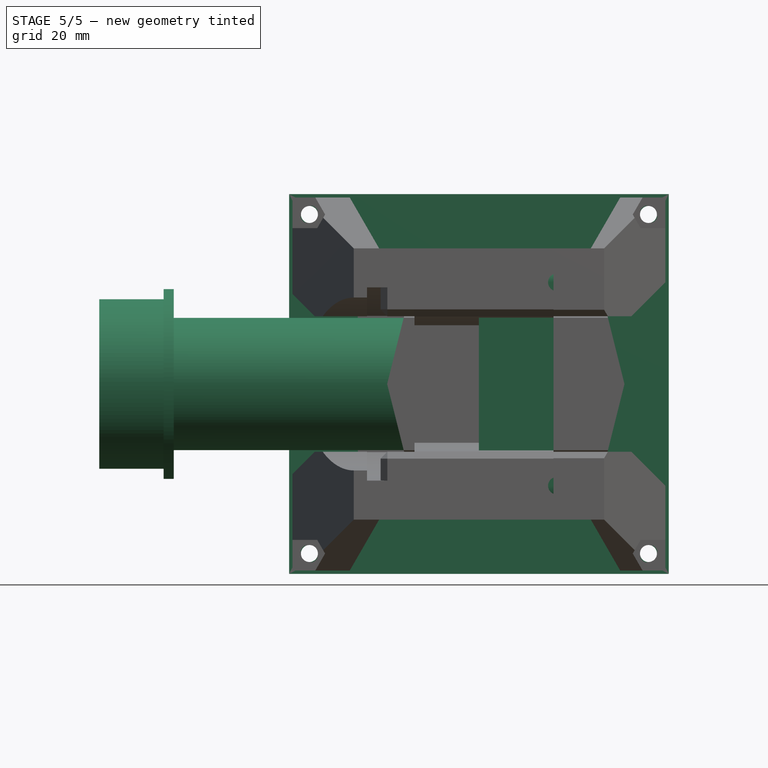
[diagram: stage 5 of 5 — front view after this stage's code; geometry added in this stage tinted green]
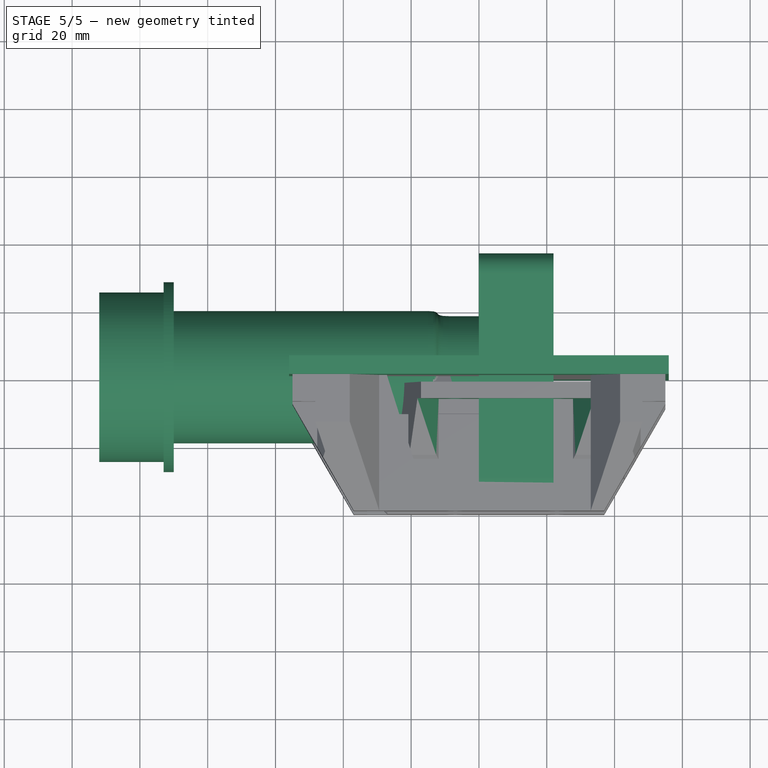
[diagram: stage 5 of 5 — top view after this stage's code; geometry added in this stage tinted green]
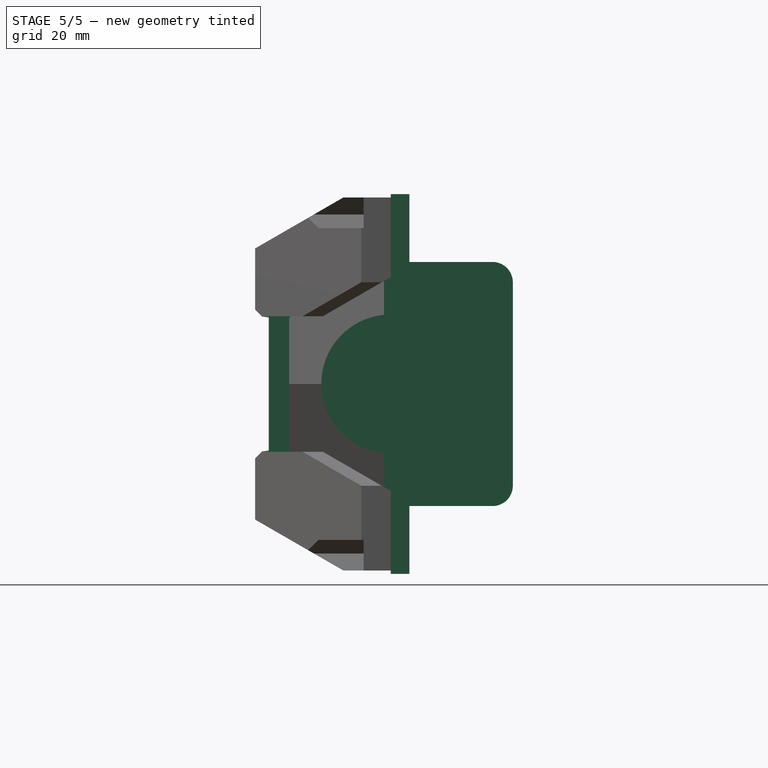
[diagram: stage 5 of 5 — right view after this stage's code; geometry added in this stage tinted green]
FEATURE [Sketcher::SketchObject] Sketch
  FullyConstrained = true
  MapMode = 5
  Placement = pos=(0,0,0) rot=(0.57735,0.57735,0.57735;2.0944rad)
  Support = -> [YZ_Plane001]
  sketch-geometry (12):
    g0: LineSegment StartX=-36 StartY=36 StartZ=0 EndX=36 EndY=36 EndZ=0
    g1: LineSegment StartX=36 StartY=36 StartZ=0 EndX=36 EndY=-36 EndZ=0
    g2: LineSegment StartX=36 StartY=-36 StartZ=0 EndX=-36 EndY=-36 EndZ=0
    g3: LineSegment StartX=-36 StartY=-36 StartZ=0 EndX=-36 EndY=36 EndZ=0
    g4: ArcOfCircle CenterX=-30 CenterY=30 CenterZ=0 NormalX=0 NormalY=0 NormalZ=1 AngleXU=0 Radius=6 StartAngle=1.5708 EndAngle=3.14159
    g5: ArcOfCircle CenterX=30 CenterY=30 CenterZ=0 NormalX=0 NormalY=0 NormalZ=1 AngleXU=0 Radius=6 StartAngle=0 EndAngle=1.5708
    g6: ArcOfCircle CenterX=30 CenterY=-30 CenterZ=0 NormalX=0 NormalY=0 NormalZ=1 AngleXU=0 Radius=6 StartAngle=4.71238 EndAngle=6.28319
    g7: ArcOfCircle CenterX=-30 CenterY=-30 CenterZ=0 NormalX=0 NormalY=0 NormalZ=1 AngleXU=0 Radius=6 StartAngle=3.14159 EndAngle=4.71239
    g8: LineSegment StartX=-36 StartY=30 StartZ=0 EndX=-36 EndY=-30 EndZ=0
    g9: LineSegment StartX=-30 StartY=36 StartZ=0 EndX=30 EndY=36 EndZ=0
    g10: LineSegment StartX=36 StartY=30 StartZ=0 EndX=36 EndY=-30 EndZ=0
    g11: LineSegment StartX=-30 StartY=-36 StartZ=0 EndX=30 EndY=-36 EndZ=0
  constraints (38):
    c: Coincident(g0,g1)
    c: Coincident(g1,g2)
    c: Coincident(g2,g3)
    c: Coincident(g3,g0)
    c: Horizontal(g2)
    c: Vertical(g1)
    c: Equal(g2,g1)
    c: DistanceX(g0,g0) = 72
    c: Symmetric(g0,g0,g-2)
    c: Symmetric(g0,g2,g-1)
    c: Horizontal(g9)
    c: Vertical(g10)
    c: Horizontal(g11)
    c: Coincident(g11,g6)
    c: Coincident(g6,g10)
    c: Coincident(g10,g5)
    c: Coincident(g5,g9)
    c: Coincident(g4,g9)
    c: Coincident(g4,g8)
    c: Coincident(g8,g7)
    c: Vertical(g8)
    c: Coincident(g7,g11)
    c: Vertical(g4,g4)
    c: Vertical(g4,g7)
    c: Vertical(g7,g7)
    c: Horizontal(g4,g4)
    c: Horizontal(g4,g5)
    c: Horizontal(g5,g5)
    c: Equal(g7,g4)
    c: Equal(g4,g5)
    c: Equal(g5,g6)
    c: Equal(g11,g10)
    c: Equal(g10,g9)
    c: Equal(g9,g8)
    c: DistanceX(g4,g4) = 6
    c: PointOnObject(g4,g0)
    c: PointOnObject(g4,g3)
    c: PointOnObject(g6,g1)
FEATURE [PartDesign::Pad] Pad
  Direction = (1,1,1)
  Length = 22
  Length2 = 100
  Placement = pos=(0,0,0) rot=(0.57735,0.57735,0.57735;2.0944rad)
  Profile = -> Sketch
  Type = 0
FEATURE [Sketcher::SketchObject] Sketch001
  FullyConstrained = false
  MapMode = 5
  Placement = pos=(0,0,0) rot=(1,0,0;1.5708rad)
  Support = -> [XZ_Plane001]
  sketch-geometry (17):
    g0: LineSegment StartX=-9 StartY=18 StartZ=0 EndX=0 EndY=18 EndZ=0
    g1: LineSegment StartX=0 StartY=18 StartZ=0 EndX=0 EndY=0 EndZ=0
    g2: GeomPoint X=-15 Y=19.5 Z=0
    g3-g6: Circle x4 (B-spline internal-alignment scaffolding for g7; pole/knot coordinates omitted)
    g7: BSplineCurve PolesCount=4 KnotsCount=2 Degree=3 IsPeriodic=0
    g8: GeomPoint X=-15 Y=19.5 Z=0
    g9: GeomPoint X=-9 Y=18 Z=0
    g10: LineSegment StartX=-15 StartY=19.5 StartZ=0 EndX=-90 EndY=19.5 EndZ=0
    g11: LineSegment StartX=-90 StartY=19.5 StartZ=0 EndX=-90 EndY=28 EndZ=0
    g12: LineSegment StartX=-90 StartY=28 StartZ=0 EndX=-93 EndY=28 EndZ=0
    g13: LineSegment StartX=-93 StartY=28 StartZ=0 EndX=-93 EndY=25 EndZ=0
    g14: LineSegment StartX=-93 StartY=25 StartZ=0 EndX=-112 EndY=25 EndZ=0
    g15: LineSegment StartX=-112 StartY=25 StartZ=0 EndX=-112 EndY=0 EndZ=0
    g16: LineSegment StartX=-112 StartY=0 StartZ=0 EndX=0 EndY=0 EndZ=0
  constraints (37):
    c: Coincident(g0,g1)
    c: Horizontal(g0)
    c: Vertical(g1)
    c: DistanceY(g1,g1) = 18
    c: Coincident(g1,g-1)
    c: DistanceX(g0,g0) = 9
    c: DistanceX(g2,g0) = 15
    c: DistanceY(g1,g2) = 19.5
    c: Coincident(g7,g2)
    c: Weight(g3) = 1
    c: Equal(g3,g4)
    c: Equal(g3,g5)
    c: Equal(g3,g6)
    c: Coincident(g7,g0)
    c: InternalAlignment(g3-g6 -> g7) x4
    c: InternalAlignment(g8,g7)
    c: InternalAlignment(g9,g7)
    c: Coincident(g10,g7)
    c: Horizontal(g10)
    c: DistanceX(g10,g10) = 75
    c: Coincident(g10,g11)
    c: Vertical(g11)
    c: Coincident(g11,g12)
    c: Horizontal(g12)
    c: Coincident(g12,g13)
    c: Vertical(g13)
    c: Coincident(g13,g14)
    c: Horizontal(g14)
    c: Coincident(g14,g15)
    c: PointOnObject(g15,g-1)
    c: Vertical(g15)
    c: Coincident(g15,g16)
    c: Coincident(g16,g1)
    c: DistanceX(g12,g12) = 3
    c: DistanceX(g14,g14) = 19
    c: DistanceY(g15,g13) = 25
    c: DistanceY(g15,g11) = 28
FEATURE [PartDesign::Revolution] Revolution
  Angle = 360
  Axis = (1,0,0)
  Base = (0,0,0)
  BaseFeature = -> Pad
  Placement = pos=(0,0,0) rot=(0.57735,0.57735,0.57735;2.0944rad)
  Profile = -> Sketch001
  ReferenceAxis = -> Sketch001 [H_Axis]
FEATURE [PartDesign::Body] Body  label="Microscope"
  Group = -> [Sketch,Pad,Sketch001,Revolution]
  Origin = -> Origin001
  Placement = pos=(60,-40,0) rot=(0,0,1;0rad)
  Tip = -> Revolution
FEATURE [Sketcher::SketchObject] Sketch002
  FullyConstrained = true
  MapMode = 5
  Placement = pos=(0,0,0) rot=(1,0,0;1.5708rad)
  Support = -> [XZ_Plane002]
  sketch-geometry (4):
    g0: LineSegment StartX=-56 StartY=56 StartZ=0 EndX=56 EndY=56 EndZ=0
    g1: LineSegment StartX=56 StartY=56 StartZ=0 EndX=56 EndY=-56 EndZ=0
    g2: LineSegment StartX=56 StartY=-56 StartZ=0 EndX=-56 EndY=-56 EndZ=0
    g3: LineSegment StartX=-56 StartY=-56 StartZ=0 EndX=-56 EndY=56 EndZ=0
  constraints (10):
    c: Coincident(g0,g1)
    c: Coincident(g1,g2)
    c: Coincident(g2,g3)
    c: Coincident(g3,g0)
    c: Horizontal(g2)
    c: Vertical(g3)
    c: Equal(g1,g0)
    c: Symmetric(g0,g0,g-2)
    c: Symmetric(g1,g0,g-1)
    c: DistanceX(g0,g0) = 112
FEATURE [PartDesign::Pad] Pad001
  Direction = (1,1,1)
  Length = 5.5
  Length2 = 100
  Placement = pos=(0,0,0) rot=(1,0,0;1.5708rad)
  Profile = -> Sketch002
  Reversed = true
  Type = 0
FEATURE [Sketcher::SketchObject] Sketch003
  FullyConstrained = true
  MapMode = 5
  Placement = pos=(0,0,0) rot=(1,0,0;1.5708rad)
  Support = -> [Pad001]
  sketch-geometry (6):
    g0: Circle CenterX=-50 CenterY=50 CenterZ=0 NormalX=0 NormalY=0 NormalZ=1 AngleXU=0 Radius=2.5
    g1: LineSegment StartX=-50 StartY=50 StartZ=0 EndX=-50 EndY=0 EndZ=0
    g2: LineSegment StartX=-50 StartY=50 StartZ=0 EndX=0 EndY=50 EndZ=0
    g3: Circle CenterX=-37.5 CenterY=37.5 CenterZ=0 NormalX=0 NormalY=0 NormalZ=1 AngleXU=0 Radius=2.5
    g4: LineSegment StartX=-37.5 StartY=37.5 StartZ=0 EndX=0 EndY=37.5 EndZ=0
    g5: LineSegment StartX=-37.5 StartY=37.5 StartZ=0 EndX=-37.5 EndY=0 EndZ=0
  constraints (18):
    c: DistanceX(g0,g-1) = 50
    c: Coincident(g1,g0)
    c: PointOnObject(g1,g-1)
    c: Vertical(g1)
    c: Coincident(g2,g0)
    c: PointOnObject(g2,g-2)
    c: Horizontal(g2)
    c: Equal(g1,g2)
    c: Diameter(g0) = 5
    c: Equal(g3,g0)
    c: Coincident(g4,g3)
    c: PointOnObject(g4,g-2)
    c: Horizontal(g4)
    c: Coincident(g5,g3)
    c: PointOnObject(g5,g-1)
    c: Vertical(g5)
    c: DistanceX(g4,g4) = 37.5
    c: Equal(g5,g4)
FEATURE [PartDesign::Pocket] Pocket
  BaseFeature = -> Pad001
  Length = 5
  Length2 = 100
  Placement = pos=(0,0,0) rot=(1,0,0;1.5708rad)
  Profile = -> Sketch003
  Type = 1
FEATURE [PartDesign::PolarPattern] PolarPattern
  Angle = 360
  Axis = -> Sketch003 [N_Axis]
  BaseFeature = -> Pocket
  Occurrences = 4
  Originals = -> [Pocket]
  Placement = pos=(0,0,0) rot=(1,0,0;1.5708rad)
FEATURE [Sketcher::SketchObject] Sketch013
  ExternalGeometry = -> [Mirrored001]
  FullyConstrained = true
  MapMode = 5
  Placement = pos=(0,0,0) rot=(1,0,0;1.5708rad)
  Support = -> [XZ_Plane004]
  sketch-geometry (9):
    g0: Circle CenterX=-7.06951 CenterY=30 CenterZ=0 NormalX=0 NormalY=0 NormalZ=1 AngleXU=0 Radius=2.7
    g1: Circle CenterX=22.9305 CenterY=30 CenterZ=0 NormalX=0 NormalY=0 NormalZ=1 AngleXU=0 Radius=2.7
    g2: LineSegment StartX=-7.06951 StartY=30 StartZ=0 EndX=22.9305 EndY=30 EndZ=0
    g3: LineSegment StartX=22.9305 StartY=30 StartZ=0 EndX=32.9305 EndY=40 EndZ=0
    g4: LineSegment StartX=-7.06951 StartY=30 StartZ=0 EndX=-17.0695 EndY=40 EndZ=0
    g5: GeomPoint X=7.93049 Y=40 Z=0
    g6: GeomPoint X=7.93049 Y=30 Z=0
    g7: LineSegment StartX=-7.06951 StartY=30 StartZ=0 EndX=-7.06951 EndY=40 EndZ=0
    g8: LineSegment StartX=-17.0695 StartY=40 StartZ=0 EndX=-7.06951 EndY=40 EndZ=0
  constraints (19):
    c: Horizontal(g1,g0)
    c: Coincident(g2,g0)
    c: Coincident(g2,g1)
    c: Coincident(g3,g1)
    c: Coincident(g3,g-5)
    c: Coincident(g4,g0)
    c: Coincident(g4,g-4)
    c: Symmetric(g2,g2,g6)
    c: Symmetric(g-4,g-4,g5)
    c: Vertical(g5,g6)
    c: Coincident(g7,g0)
    c: PointOnObject(g7,g-4)
    c: Vertical(g7)
    c: DistanceY(g7,g7) = 10
    c: Coincident(g8,g4)
    c: Coincident(g8,g7)
    c: DistanceX(g8,g8) = 10
    c: Equal(g1,g0)
    c: Diameter(g0) = 5.4
FEATURE [PartDesign::Pocket] Pocket006
  BaseFeature = -> Mirrored001
  Length = 5
  Length2 = 100
  Midplane = true
  Placement = pos=(0,0,0) rot=(1,0,0;1.5708rad)
  Profile = -> Sketch013
  Type = 1
FEATURE [PartDesign::Mirrored] Mirrored002
  BaseFeature = -> Pocket006
  MirrorPlane = -> Sketch013 [H_Axis]
  Originals = -> [Pocket006]
  Placement = pos=(0,0,0) rot=(1,0,0;1.5708rad)
FEATURE [Sketcher::SketchObject] Sketch014
  ExternalGeometry = -> [Mirrored002]
  FullyConstrained = false
  MapMode = 5
  Placement = pos=(-1.5e-15,-6.8155,4.5e-15) rot=(1,0,0;1.5708rad)
  Support = -> [Mirrored002]
  sketch-geometry (6):
    g0: LineSegment StartX=-11.8744 StartY=24.8887 StartZ=0 EndX=27.7353 EndY=24.8887 EndZ=0
    g1: LineSegment StartX=27.7353 StartY=24.8887 StartZ=0 EndX=33.9969 EndY=35.7342 EndZ=0
    g2: LineSegment StartX=-11.8744 StartY=24.8887 StartZ=0 EndX=-18.136 EndY=35.7342 EndZ=0
    g3: LineSegment StartX=-11.8744 StartY=24.8887 StartZ=0 EndX=-11.8744 EndY=35.7342 EndZ=0
    g4: LineSegment StartX=-18.136 StartY=35.7342 StartZ=0 EndX=-11.8744 EndY=35.7342 EndZ=0
    g5: LineSegment StartX=-18.136 StartY=35.7342 StartZ=0 EndX=33.9969 EndY=35.7342 EndZ=0
  constraints (14):
    c: Horizontal(g0)
    c: Coincident(g1,g0)
    c: Coincident(g1,g-4)
    c: Coincident(g2,g0)
    c: Equal(g2,g1)
    c: Coincident(g3,g0)
    c: Vertical(g3)
    c: Coincident(g4,g-3)
    c: Coincident(g4,g3)
    c: Coincident(g2,g4)
    c: Horizontal(g4)
    c: Angle(g2,g4) = 1.0472
    c: Coincident(g5,g2)
    c: Coincident(g5,g1)
FEATURE [PartDesign::Pocket] Pocket007
  BaseFeature = -> Mirrored002
  Length = 5
  Length2 = 100
  Placement = pos=(0,0,0) rot=(1,0,0;1.5708rad)
  Profile = -> Sketch014
  Reversed = true
  Type = 1
FEATURE [PartDesign::Mirrored] Mirrored003
  BaseFeature = -> Pocket007
  MirrorPlane = -> Sketch014 [H_Axis]
  Originals = -> [Pocket007]
  Placement = pos=(0,0,0) rot=(1,0,0;1.5708rad)
FEATURE [Sketcher::SketchObject] Sketch024
  FullyConstrained = false
  MapMode = 5
  Placement = pos=(0,0,0) rot=(-1,0,0;1.5708rad)
  Support = -> [Mirrored003]
  sketch-geometry (4):
    g0: LineSegment StartX=-49.0851 StartY=47.2308 StartZ=0 EndX=65.9964 EndY=47.2308 EndZ=0
    g1: LineSegment StartX=65.9964 StartY=47.2308 StartZ=0 EndX=65.9964 EndY=-51.4105 EndZ=0
    g2: LineSegment StartX=65.9964 StartY=-51.4105 StartZ=0 EndX=-49.0851 EndY=-51.4105 EndZ=0
    g3: LineSegment StartX=-49.0851 StartY=-51.4105 StartZ=0 EndX=-49.0851 EndY=47.2308 EndZ=0
  constraints (8):
    c: Coincident(g0,g1)
    c: Coincident(g1,g2)
    c: Coincident(g2,g3)
    c: Coincident(g3,g0)
    c: Horizontal(g0)
    c: Horizontal(g2)
    c: Vertical(g1)
    c: Vertical(g3)
FEATURE [PartDesign::Pocket] Pocket017
  BaseFeature = -> Mirrored003
  Length = 2
  Length2 = 100
  Placement = pos=(0,0,0) rot=(1,0,0;1.5708rad)
  Profile = -> Sketch024
  Type = 0
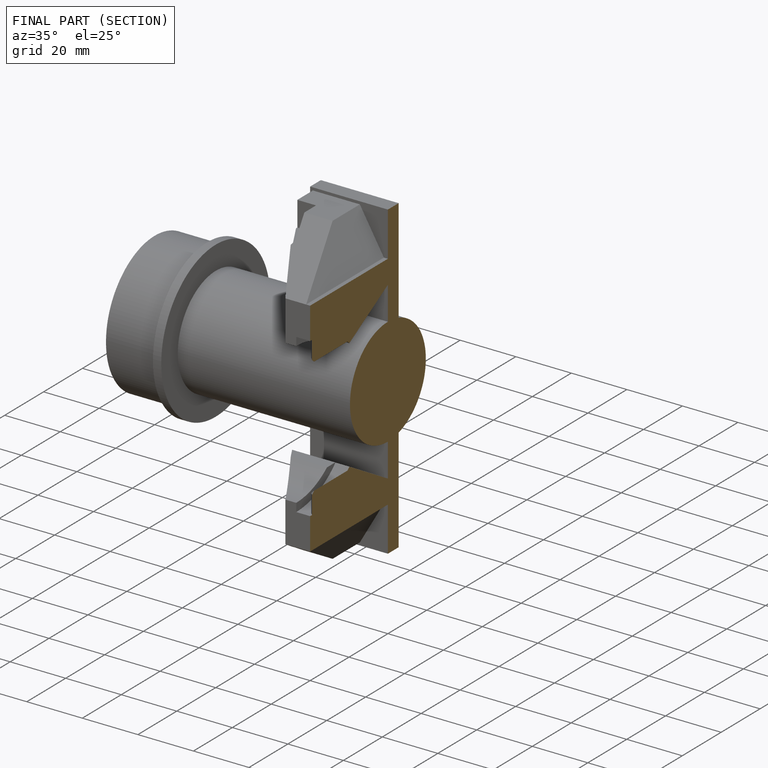
[diagram: finished part — half-section view (interior)]
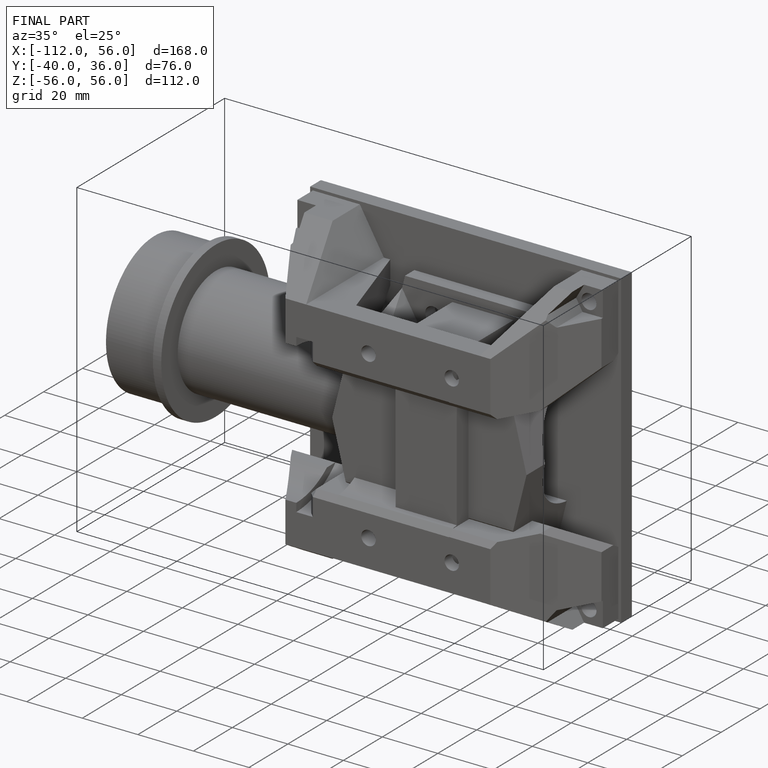
[diagram: finished part — iso view with bounding-box wireframe]
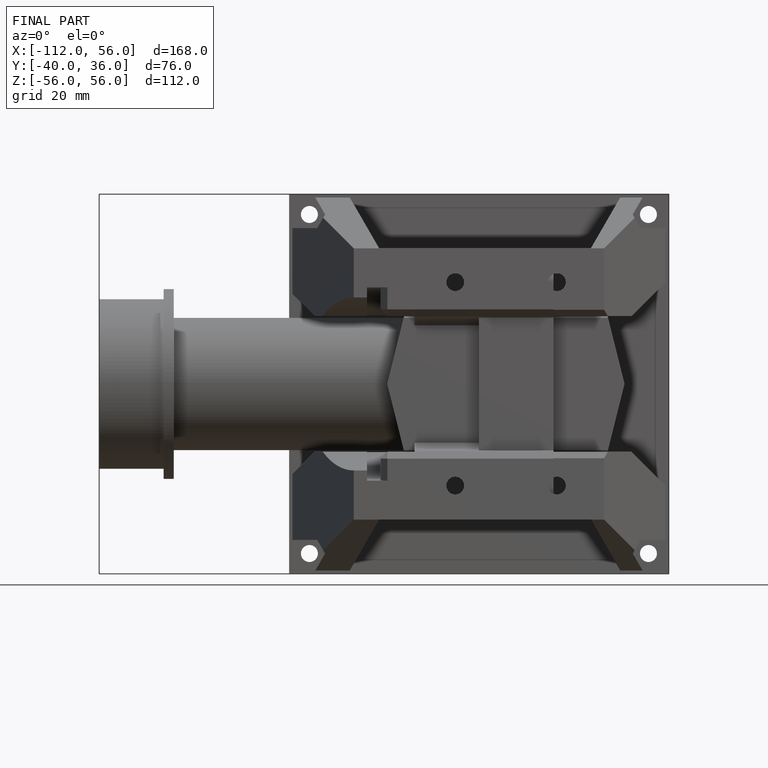
[diagram: finished part — front view with bounding-box wireframe]
